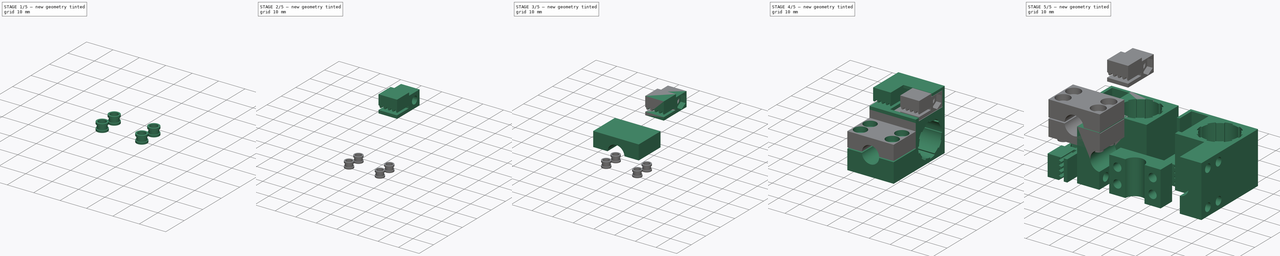
[diagram: build sequence overview — one tinted view per stage of 5, left to right]
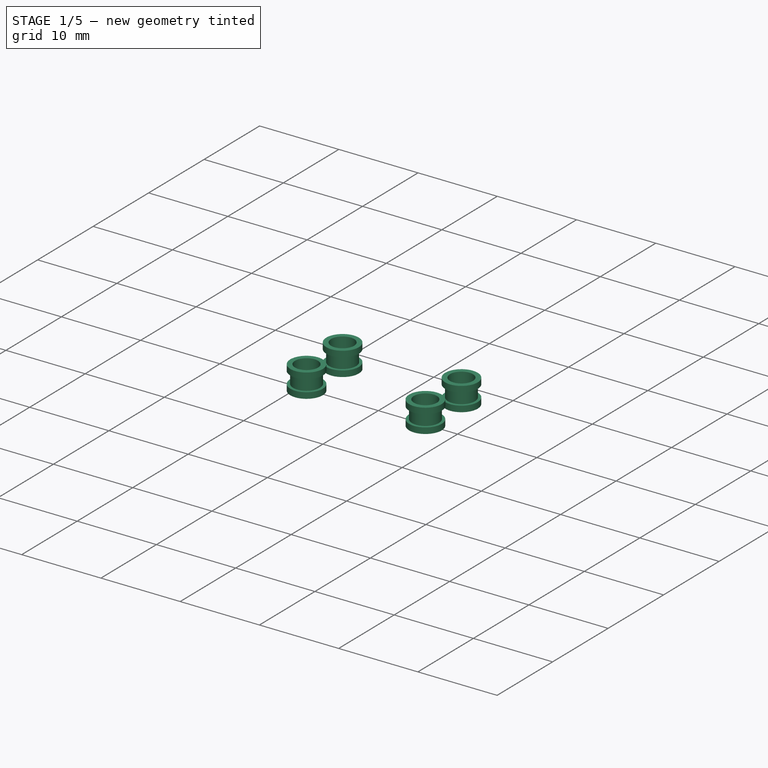
[diagram: stage 1 of 5 — iso view after this stage's code; geometry added in this stage tinted green]
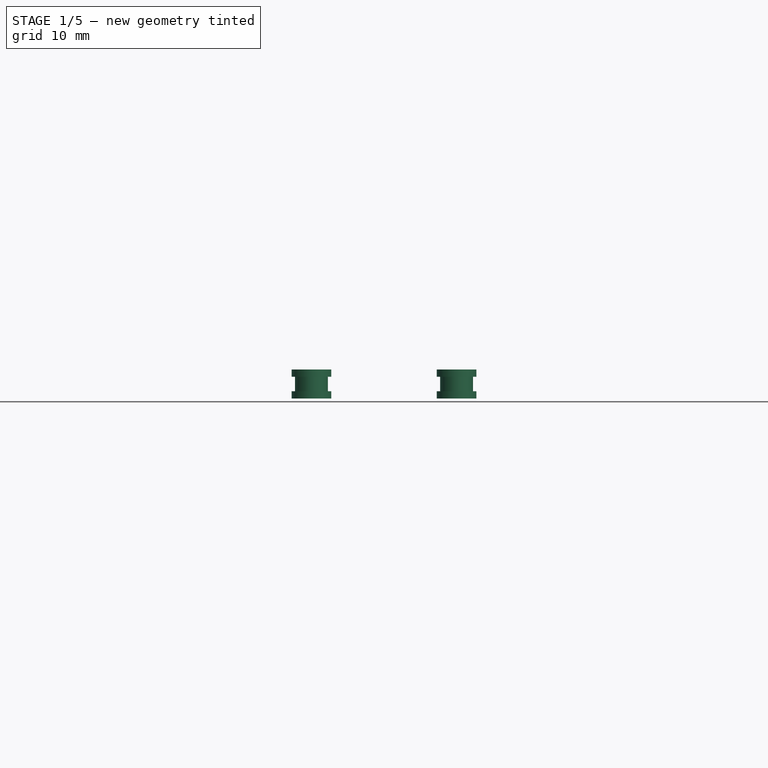
[diagram: stage 1 of 5 — front view after this stage's code; geometry added in this stage tinted green]
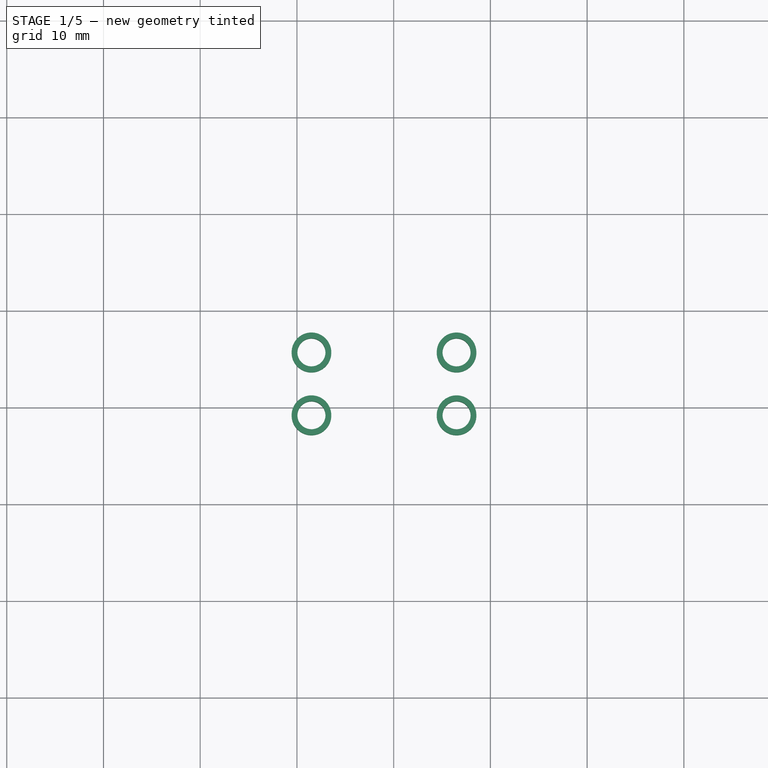
[diagram: stage 1 of 5 — top view after this stage's code; geometry added in this stage tinted green]
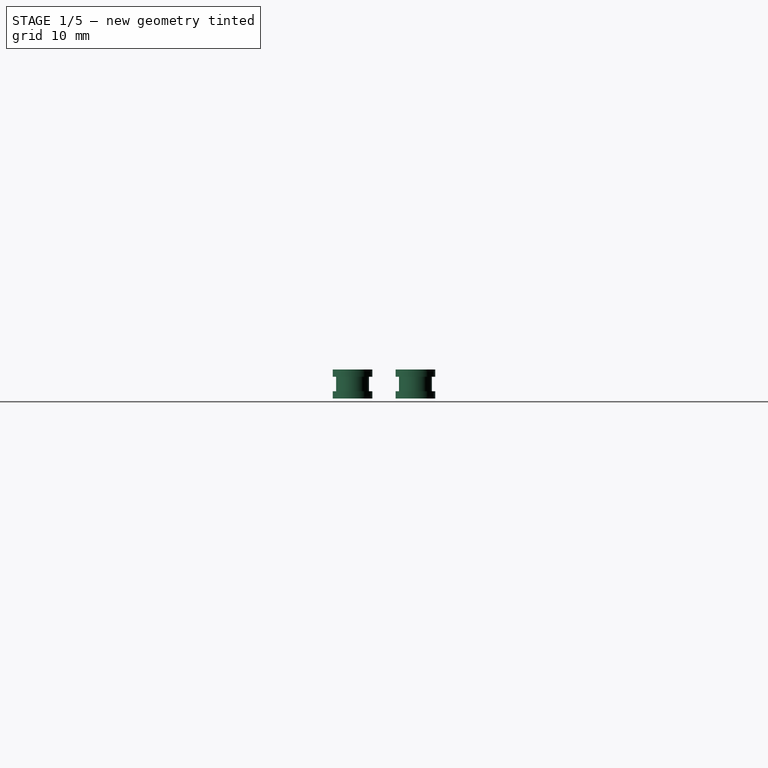
[diagram: stage 1 of 5 — right view after this stage's code; geometry added in this stage tinted green]
FCSTD DOCUMENT  (FreeCAD 0.17R)
Label: Axisholder
License: All rights reserved
LicenseURL: http://en.wikipedia.org/wiki/All_rights_reserved
objects: Sketcher::SketchObject×20, PartDesign::FeatureBase×19, PartDesign::Pocket×10, PartDesign::Pad×9, App::DocumentObjectGroup×7, PartDesign::Body×6, PartDesign::ShapeBinder×4, Part::MultiFuse×2, App::Part×2, PartDesign::PolarPattern×1, PartDesign::Revolution×1
note: 92 computed .brp shape members not serialized (recipe doc carries the construction recipe); baked Part::Feature solids carry a one-line shape summary decoded from their .brp

FEATURE [App::DocumentObjectGroup] Group004  label="Printables"
  Group = -> [Clone010,Clone011,Clone009,Clone008]
FEATURE [Sketcher::SketchObject] Sketch020
  MapMode = 5
  Placement = pos=(0,0,0) rot=(1,0,0;1.5708rad)
  Support = -> [XZ_Plane006]
  sketch-geometry (8):
    g0: LineSegment StartX=1.45 StartY=0 StartZ=0 EndX=2.05 EndY=0 EndZ=0
    g1: LineSegment StartX=2.05 StartY=0 StartZ=0 EndX=2.05 EndY=0.75 EndZ=0
    g2: LineSegment StartX=2.05 StartY=0.75 StartZ=0 EndX=1.7 EndY=0.75 EndZ=0
    g3: LineSegment StartX=1.7 StartY=0.75 StartZ=0 EndX=1.7 EndY=2.25 EndZ=0
    g4: LineSegment StartX=1.7 StartY=2.25 StartZ=0 EndX=2.05 EndY=2.25 EndZ=0
    g5: LineSegment StartX=2.05 StartY=2.25 StartZ=0 EndX=2.05 EndY=3 EndZ=0
    g6: LineSegment StartX=2.05 StartY=3 StartZ=0 EndX=1.45 EndY=3 EndZ=0
    g7: LineSegment StartX=1.45 StartY=3 StartZ=0 EndX=1.45 EndY=0 EndZ=0
  constraints (24):
    c: PointOnObject(g0,g-1)
    c: Horizontal(g0)
    c: Coincident(g0,g1)
    c: Vertical(g1)
    c: Coincident(g1,g2)
    c: Horizontal(g2)
    c: Coincident(g2,g3)
    c: Vertical(g3)
    c: Coincident(g3,g4)
    c: Horizontal(g4)
    c: Coincident(g4,g5)
    c: Vertical(g5)
    c: Coincident(g5,g6)
    c: Horizontal(g6)
    c: Coincident(g6,g7)
    c: Vertical(g7)
    c: Coincident(g0,g7)
    c: DistanceX(g-1,g0) = 1.45
    c: DistanceX(g-1,g0) = 2.05
    c: DistanceX(g-1,g2) = 1.7
    c: Equal(g2,g4)
    c: Equal(g5,g1)
    c: DistanceY(g0,g5) = 3
    c: DistanceY(g3,g3) = 1.5
FEATURE [PartDesign::Revolution] Revolution
  Angle = 360
  Axis = (0,0,1)
  Base = (0,0,0)
  Placement = pos=(0,0,0) rot=(1,0,0;1.5708rad)
  Profile = -> Sketch020
  ReferenceAxis = -> Sketch020 [V_Axis]
  Reversed = true
FEATURE [PartDesign::Body] Body005  label="Press-In-Bushing_M3x3mm"
  Group = -> [Sketch020,Revolution]
  Origin = -> Origin006
  Placement = pos=(-18.5,-20.8,6) rot=(0,0,1;0rad)
  Tip = -> Revolution
FEATURE [PartDesign::FeatureBase] Clone012  label="Press-In-Bushing_M3x3mm001"
  BaseFeature = -> Body005
  Placement = pos=(-18.5,-14.3,6) rot=(0,0,1;0rad)
FEATURE [PartDesign::FeatureBase] Clone013  label="Press-In-Bushing_M3x3mm002"
  BaseFeature = -> Clone012
  Placement = pos=(-3.5,-20.8,6) rot=(0,0,1;0rad)
FEATURE [PartDesign::FeatureBase] Clone014  label="Press-In-Bushing_M3x3mm003"
  BaseFeature = -> Clone012
  Placement = pos=(-3.5,-14.3,6) rot=(0,0,1;0rad)
FEATURE [PartDesign::FeatureBase] Clone015  label="Press-In-Bushing_M3x3mm004"
  BaseFeature = -> Body005
  Placement = pos=(-18.5,-20.8,-9) rot=(0,0,1;0rad)
FEATURE [PartDesign::FeatureBase] Clone016  label="Press-In-Bushing_M3x3mm005"
  BaseFeature = -> Clone012
  Placement = pos=(-18.5,-14.3,-9) rot=(0,0,1;0rad)
FEATURE [PartDesign::FeatureBase] Clone017  label="Press-In-Bushing_M3x3mm006"
  BaseFeature = -> Clone013
  Placement = pos=(-3.5,-20.8,-9) rot=(0,0,1;0rad)
FEATURE [PartDesign::FeatureBase] Clone018  label="Press-In-Bushing_M3x3mm007"
  BaseFeature = -> Clone014
  Placement = pos=(-3.5,-14.3,-9) rot=(0,0,1;0rad)
FEATURE [App::DocumentObjectGroup] Group005  label="Press-In-Bushings"
  Group = -> [Body005,Clone012,Clone013,Clone014]
FEATURE [App::DocumentObjectGroup] Group001  label="Assy_X-Axisholder"
  Group = -> [Fusion,Clone004,Clone006,Group005]
FEATURE [App::Part] Part  label="Assembly_X-Axisholder"
  Group = -> [Fusion,Clone002,Clone004,Clone006,Clone,Group001,Group005,Body005,Clone012,Clone013,Clone014]
  License = CC BY 3.0
  LicenseURL = http://creativecommons.org/licenses/by/3.0/
  Origin = -> Origin004
  Placement = pos=(0,0,0) rot=(0,1,0;3.14159rad)
FEATURE [App::DocumentObjectGroup] Group006  label="Press-In-Bushing"
  Group = -> [Clone015,Clone016,Clone017,Clone018]
FEATURE [App::DocumentObjectGroup] Group002  label="Assy_Y-Axisholder"
  Group = -> [Fusion001,Clone005,Clone007,Group006]
FEATURE [App::Part] Part001  label="Assembly_Y-Axisholder"
  Group = -> [Clone007,Clone003,Fusion001,Clone005,Clone001,Group002,Group006,Clone015,Clone016,Clone017,Clone018]
  License = CC BY 3.0
  LicenseURL = http://creativecommons.org/licenses/by/3.0/
  Origin = -> Origin005
  Placement = pos=(-10,0,0) rot=(0,0,1;0rad)
FEATURE [App::DocumentObjectGroup] Group003  label="Assemblies"
  Group = -> [Part,Part001]
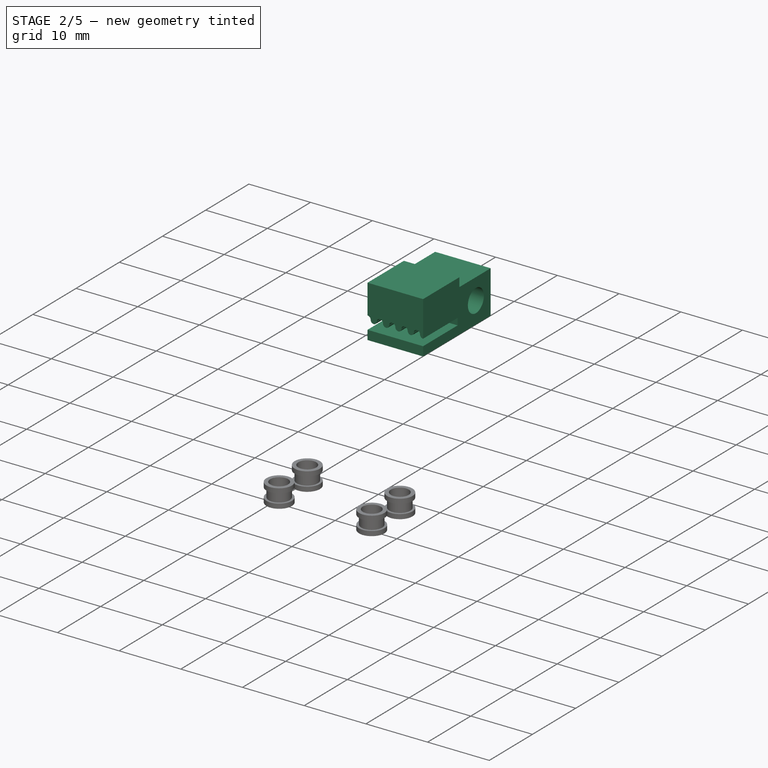
[diagram: stage 2 of 5 — iso view after this stage's code; geometry added in this stage tinted green]
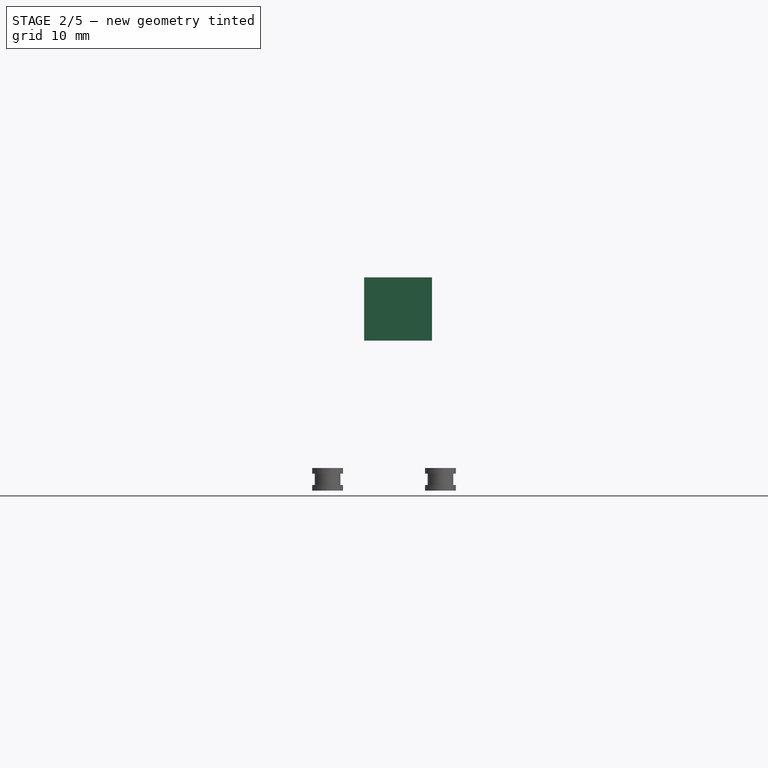
[diagram: stage 2 of 5 — front view after this stage's code; geometry added in this stage tinted green]
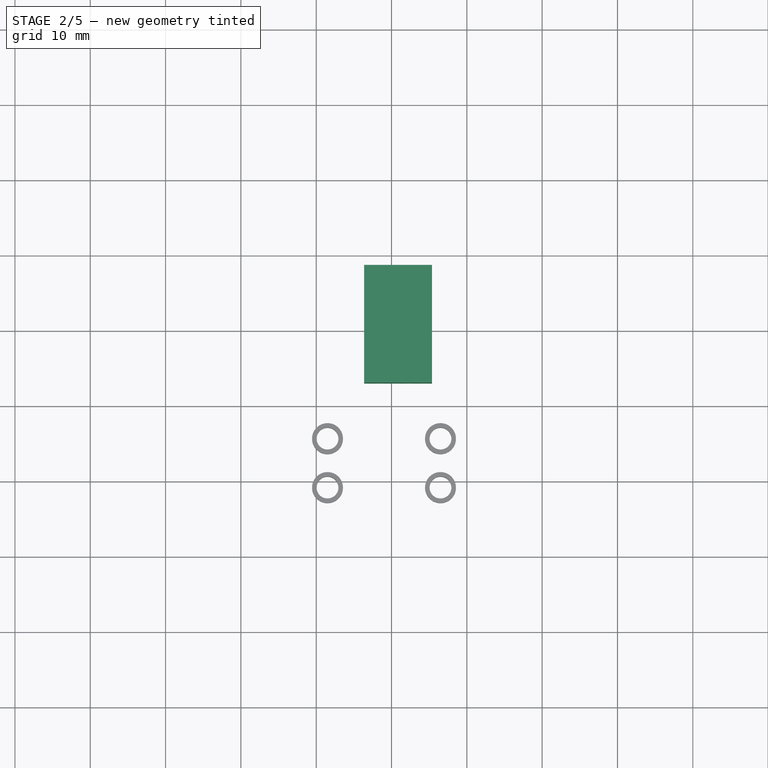
[diagram: stage 2 of 5 — top view after this stage's code; geometry added in this stage tinted green]
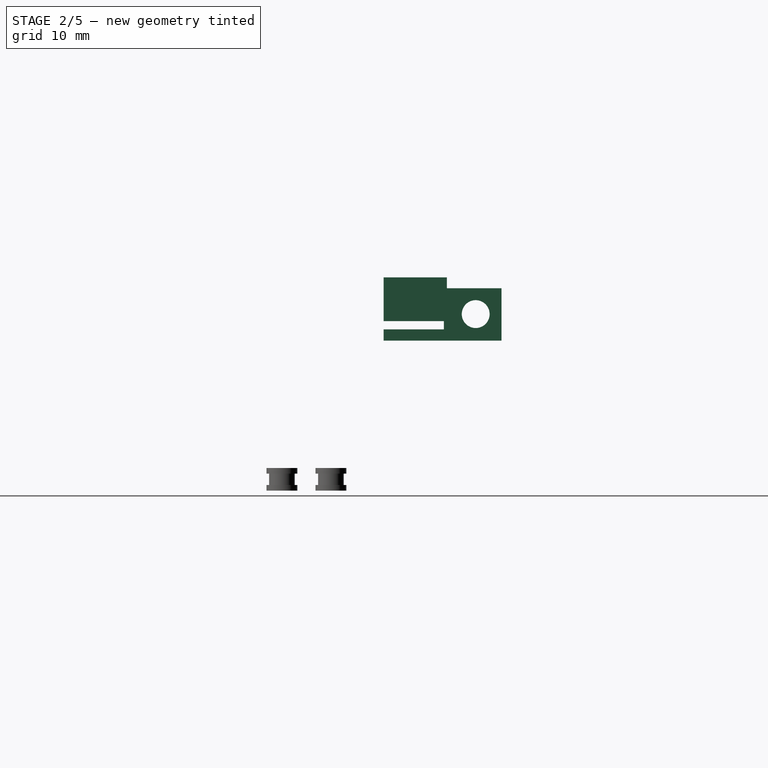
[diagram: stage 2 of 5 — right view after this stage's code; geometry added in this stage tinted green]
FEATURE [Sketcher::SketchObject] Sketch002  label="Beltblock"
  MapMode = 5
  Placement = pos=(0,0,10.8128) rot=(0,0,-1;1.5708rad)
  sketch-geometry (4):
    g0: LineSegment StartX=7.3 StartY=-13.6306 StartZ=0 EndX=-9.8 EndY=-13.6306 EndZ=0
    g1: LineSegment StartX=-9.8 StartY=-13.6306 StartZ=0 EndX=-9.8 EndY=-22 EndZ=0
    g2: LineSegment StartX=-9.8 StartY=-22 StartZ=0 EndX=7.3 EndY=-22 EndZ=0
    g3: LineSegment StartX=7.3 StartY=-13.6306 StartZ=0 EndX=7.3 EndY=-22 EndZ=0
  constraints (8):
    c: Coincident(g0,g1)
    c: Coincident(g1,g2)
    c: Horizontal(g0)
    c: Horizontal(g2)
    c: Vertical(g1)
    c: Coincident(g3,g0)
    c: Coincident(g3,g2)
    c: Vertical(g3)
FEATURE [Sketcher::SketchObject] Sketch  label="Grundkörper_Sketch"
  MapMode = 5
  Placement = pos=(0,0,0) rot=(0.57735,0.57735,0.57735;2.0944rad)
  Support = -> [YZ_Plane]
  sketch-geometry (7):
    g0: Circle CenterX=0 CenterY=0 CenterZ=0 NormalX=0 NormalY=0 NormalZ=1 AngleXU=0 Radius=7.6
    g1: LineSegment StartX=-9.8 StartY=10.8128 StartZ=0 EndX=9.8 EndY=10.8128 EndZ=0
    g2: LineSegment StartX=9.8 StartY=10.8128 StartZ=0 EndX=9.8 EndY=-9.5 EndZ=0
    g3: LineSegment StartX=9.8 StartY=-9.5 StartZ=0 EndX=-9.8 EndY=-9.5 EndZ=0
    g4: LineSegment StartX=-9.8 StartY=10.8128 StartZ=0 EndX=-9.8 EndY=-9.5 EndZ=0
    g5: LineSegment [constr] StartX=0 StartY=0 StartZ=0 EndX=0 EndY=-9.5 EndZ=0
    g6: LineSegment [constr] StartX=0 StartY=0 StartZ=0 EndX=9.8 EndY=0 EndZ=0
  constraints (19):
    c: Coincident(g0,g-1)
    c: Coincident(g1,g2)
    c: Coincident(g2,g3)
    c: Horizontal(g1)
    c: Horizontal(g3)
    c: Vertical(g2)
    c: Radius(g0) = 7.6
    c: Coincident(g1,g4)
    c: Vertical(g4)
    c: Coincident(g4,g3)
    c: Symmetric(g1,g1,g-2)
    c: Coincident(g5,g-1)
    c: PointOnObject(g5,g3)
    c: Vertical(g5)
    c: Distance(g5) = 9.5
    c: Coincident(g6,g-1)
    c: PointOnObject(g6,g2)
    c: DistanceX(g6,g6) = 9.8
    c: Horizontal(g6)
FEATURE [PartDesign::Pad] Pad  label="Grundkörper_Pad"
  Length = 22
  Length2 = 100
  Placement = pos=(0,0,0) rot=(0.57735,0.57735,0.57735;2.0944rad)
  Profile = -> Sketch
  Reversed = true
  Type = 0
FEATURE [PartDesign::Pad] Pad001  label="Pad_Beltblock"
  BaseFeature = -> Pad
  Length = 8.5
  Length2 = 100
  Placement = pos=(0,0,0) rot=(0.57735,0.57735,0.57735;2.0944rad)
  Profile = -> Sketch002
  Type = 0
FEATURE [Sketcher::SketchObject] Sketch003  label="Belt_Cutout"
  ExternalGeometry = -> [Pad001]
  MapMode = 5
  Placement = pos=(0,-7.3,0) rot=(0.57735,0.57735,-0.57735;2.0944rad)
  sketch-geometry (13):
    g0: LineSegment [constr] StartX=-13.9128 StartY=-22 StartZ=0 EndX=-13.9128 EndY=-13 EndZ=0
    g1: LineSegment StartX=-12.3128 StartY=-22 StartZ=0 EndX=-12.3128 EndY=-13.6306 EndZ=0
    g2: ArcOfCircle CenterX=-13.9128 CenterY=-21.5417 CenterZ=0 NormalX=0 NormalY=0 NormalZ=1 AngleXU=0 Radius=0.5 StartAngle=5.12391 EndAngle=7.85398
    g3: ArcOfCircle CenterX=-13.9128 CenterY=-20.5417 CenterZ=0 NormalX=0 NormalY=0 NormalZ=1 AngleXU=0 Radius=0.5 StartAngle=1.5708 EndAngle=4.71239
    g4: ArcOfCircle CenterX=-13.9128 CenterY=-19.5417 CenterZ=0 NormalX=0 NormalY=0 NormalZ=1 AngleXU=0 Radius=0.5 StartAngle=4.71239 EndAngle=7.85398
    g5: ArcOfCircle CenterX=-13.9128 CenterY=-18.5417 CenterZ=0 NormalX=0 NormalY=0 NormalZ=1 AngleXU=0 Radius=0.5 StartAngle=1.5708 EndAngle=4.71239
    g6: ArcOfCircle CenterX=-13.9128 CenterY=-17.5417 CenterZ=0 NormalX=0 NormalY=0 NormalZ=1 AngleXU=0 Radius=0.5 StartAngle=4.71239 EndAngle=7.85398
    g7: ArcOfCircle CenterX=-13.9128 CenterY=-16.5417 CenterZ=0 NormalX=0 NormalY=0 NormalZ=1 AngleXU=0 Radius=0.5 StartAngle=1.5708 EndAngle=4.71239
    g8: ArcOfCircle CenterX=-13.9128 CenterY=-15.5417 CenterZ=0 NormalX=0 NormalY=0 NormalZ=1 AngleXU=0 Radius=0.5 StartAngle=4.71239 EndAngle=7.85398
    g9: ArcOfCircle CenterX=-13.9128 CenterY=-14.5417 CenterZ=0 NormalX=0 NormalY=0 NormalZ=1 AngleXU=0 Radius=0.5 StartAngle=1.5708 EndAngle=4.71239
    g10: ArcOfCircle CenterX=-13.9128 CenterY=-13.5417 CenterZ=0 NormalX=0 NormalY=0 NormalZ=1 AngleXU=0 Radius=0.5 StartAngle=4.71239 EndAngle=6.10449
    g11: LineSegment StartX=-13.7128 StartY=-22 StartZ=0 EndX=-12.3128 EndY=-22 EndZ=0
    g12: LineSegment StartX=-12.3128 StartY=-13.6306 StartZ=0 EndX=-13.4208 EndY=-13.6306 EndZ=0
  constraints (51):
    c: Vertical(g0)
    c: Vertical(g1)
    c: DistanceX(g1,g-3) = 1.5
    c: Coincident(g3,g2)
    c: PointOnObject(g2,g0)
    c: PointOnObject(g2,g0)
    c: PointOnObject(g3,g0)
    c: PointOnObject(g3,g0)
    c: Radius(g2) = 0.5
    c: Equal(g2,g3)
    c: Coincident(g5,g4)
    c: Equal(g2,g4) = 0.5
    c: Equal(g4,g5)
    c: Coincident(g7,g6)
    c: Equal(g2,g6) = 0.5
    c: Equal(g6,g7)
    c: Coincident(g9,g8)
    c: Equal(g2,g8) = 0.5
    c: Equal(g8,g9)
    c: PointOnObject(g5,g0)
    c: Coincident(g4,g3)
    c: Coincident(g6,g5)
    c: Coincident(g8,g7)
    c: Coincident(g10,g9)
    c: Equal(g9,g10)
    c: PointOnObject(g4,g0)
    c: PointOnObject(g4,g0)
    c: PointOnObject(g5,g0)
    c: PointOnObject(g6,g0)
    c: PointOnObject(g6,g0)
    c: PointOnObject(g7,g0)
    c: PointOnObject(g7,g0)
    c: PointOnObject(g8,g0)
    c: PointOnObject(g8,g0)
    c: PointOnObject(g9,g0)
    c: PointOnObject(g9,g0)
    c: PointOnObject(g10,g0)
    c: DistanceX(g2,g1) = 1.6
    c: PointOnObject(g11,g-3)
    c: Coincident(g11,g1)
    c: Horizontal(g11)
    c: PointOnObject(g2,g11)
    c: Coincident(g11,g2)
    c: Coincident(g12,g1)
    c: Horizontal(g12)
    c: PointOnObject(g10,g12)
    c: Coincident(g12,g10)
    c: DistanceY(g0,g0) = 9
    c: PointOnObject(g0,g-3)
    c: PointOnObject(g10,g-4)
    c: DistanceX(g0,g2) = 0.2
FEATURE [PartDesign::Pocket] Pocket  label="Belt_Cutout_Pocket"
  BaseFeature = -> Pad001
  Length = 8
  Length2 = 100
  Placement = pos=(0,0,0) rot=(0.57735,0.57735,0.57735;2.0944rad)
  Profile = -> Sketch003
  Type = 0
FEATURE [Sketcher::SketchObject] Sketch004
  ExternalGeometry = -> [Pocket]
  MapMode = 5
  Placement = pos=(-13.6306,0,0) rot=(0.57735,0.57735,0.57735;2.0944rad)
  Support = -> [Pocket]
  sketch-geometry (6):
    g0: LineSegment StartX=9.8 StartY=19.3128 StartZ=0 EndX=1.3 EndY=19.3128 EndZ=0
    g1: LineSegment StartX=8.55 StartY=10.8128 StartZ=0 EndX=9.8 EndY=10.8128 EndZ=0
    g2: LineSegment StartX=9.8 StartY=10.8128 StartZ=0 EndX=9.8 EndY=19.3128 EndZ=0
    g3: LineSegment StartX=1.3 StartY=19.3128 StartZ=0 EndX=1.3 EndY=18.0628 EndZ=0
    g4: LineSegment StartX=1.3 StartY=18.0628 StartZ=0 EndX=8.55 EndY=18.0628 EndZ=0
    g5: LineSegment StartX=8.55 StartY=18.0628 StartZ=0 EndX=8.55 EndY=10.8128 EndZ=0
  constraints (17):
    c: Coincident(g1,g2)
    c: Coincident(g2,g0)
    c: Horizontal(g0)
    c: Horizontal(g1)
    c: Vertical(g2)
    c: Coincident(g0,g-3)
    c: Coincident(g1,g-3)
    c: Coincident(g0,g3)
    c: Vertical(g3)
    c: Coincident(g3,g4)
    c: Horizontal(g4)
    c: Vertical(g5)
    c: Coincident(g1,g5)
    c: Coincident(g5,g4)
    c: DistanceX(g1,g1) = 1.25
    c: DistanceY(g3,g3) = 1.25
    c: Equal(g5,g4)
FEATURE [PartDesign::Pad] Pad002  label="Führung_Beltspanner"
  BaseFeature = -> Pocket
  Length = 10
  Length2 = 100
  Placement = pos=(0,0,0) rot=(0.57735,0.57735,0.57735;2.0944rad)
  Profile = -> Sketch004
  Type = 3
  UpToFace = -> Pocket [Face1]
FEATURE [Sketcher::SketchObject] Sketch005  label="Schraube_Beltspanner"
  ExternalGeometry = -> [Pad002]
  MapMode = 5
  Placement = pos=(-13.6306,0,0) rot=(0.57735,0.57735,0.57735;2.0944rad)
  Support = -> [Pad002]
  sketch-geometry (3):
    g0: Circle CenterX=4.925 CenterY=14.4378 CenterZ=0 NormalX=0 NormalY=0 NormalZ=1 AngleXU=0 Radius=1.65
    g1: LineSegment [constr] StartX=4.925 StartY=14.4378 StartZ=0 EndX=4.925 EndY=18.0628 EndZ=0
    g2: LineSegment [constr] StartX=4.925 StartY=14.4378 StartZ=0 EndX=8.55 EndY=14.4378 EndZ=0
  constraints (9):
    c: Coincident(g1,g0)
    c: PointOnObject(g1,g-4)
    c: Vertical(g1)
    c: Coincident(g2,g0)
    c: PointOnObject(g2,g-3)
    c: Horizontal(g2)
    c: Symmetric(g-3,g-4,g2)
    c: Symmetric(g-4,g-4,g1)
    c: Radius(g0) = 1.65
FEATURE [PartDesign::Pocket] Pocket001  label="Schraubenloch_Beltspanner"
  BaseFeature = -> Pad002
  Length = 5
  Length2 = 100
  Placement = pos=(0,0,0) rot=(0.57735,0.57735,0.57735;2.0944rad)
  Profile = -> Sketch005
  Type = 1
FEATURE [Sketcher::SketchObject] Sketch006  label="IGUS_Aussparrung"
  MapMode = 5
  Placement = pos=(-22,0,0) rot=(0.57735,0.57735,-0.57735;4.18879rad)
  Support = -> [Pocket001]
  sketch-geometry (6):
    g0: ArcOfCircle CenterX=0 CenterY=0 CenterZ=0 NormalX=0 NormalY=0 NormalZ=1 AngleXU=0 Radius=8.25 StartAngle=2.74889 EndAngle=3.14159
    g1: ArcOfCircle CenterX=0 CenterY=0 CenterZ=0 NormalX=0 NormalY=0 NormalZ=1 AngleXU=0 Radius=7 StartAngle=2.74889 EndAngle=3.14159
    g2: LineSegment [constr] StartX=0 StartY=0 StartZ=0 EndX=-7.62201 EndY=3.15714 EndZ=0
    g3: LineSegment [constr] StartX=0 StartY=0 StartZ=0 EndX=-8.25 EndY=-2e-12 EndZ=0
    g4: LineSegment StartX=-7 StartY=-1e-12 StartZ=0 EndX=-8.25 EndY=-2e-12 EndZ=0
    g5: LineSegment StartX=-6.46716 StartY=2.67878 StartZ=0 EndX=-7.62201 EndY=3.15714 EndZ=0
  constraints (16):
    c: Coincident(g0,g-1)
    c: Coincident(g1,g-1)
    c: Coincident(g2,g-1)
    c: Coincident(g3,g-1)
    c: Angle(g2,g3) = 0.392699
    c: Coincident(g0,g2)
    c: Coincident(g0,g3)
    c: PointOnObject(g1,g2)
    c: PointOnObject(g1,g3)
    c: Radius(g0) = 8.25
    c: Radius(g1) = 7
    c: Coincident(g4,g1)
    c: Coincident(g4,g0)
    c: Coincident(g5,g1)
    c: Coincident(g5,g0)
    c: PointOnObject(g0,g-1)
FEATURE [PartDesign::Pocket] Pocket002  label="IGUS_Aussparrung_Single"
  BaseFeature = -> Pocket001
  Length = 5
  Length2 = 100
  Placement = pos=(0,0,0) rot=(0.57735,0.57735,0.57735;2.0944rad)
  Profile = -> Sketch006
  Type = 1
FEATURE [PartDesign::PolarPattern] PolarPattern  label="PolarPattern_IGUSAusparrung"
  Angle = 360
  Axis = -> X_Axis
  BaseFeature = -> Pocket002
  Occurrences = 8
  Originals = -> [Pocket002]
  Placement = pos=(0,0,0) rot=(0.57735,0.57735,0.57735;2.0944rad)
FEATURE [Sketcher::SketchObject] Sketch011  label="Verbindung_Führungsschiene"
  ExternalGeometry = -> [Pad004]
  MapMode = 5
  Placement = pos=(0,-7.3,0) rot=(0.57735,0.57735,-0.57735;2.0944rad)
  Support = -> [Pad004]
  sketch-geometry (4):
    g0: LineSegment StartX=-12.3128 StartY=-13.6306 StartZ=0 EndX=-10.8128 EndY=-13.6306 EndZ=0
    g1: LineSegment StartX=-10.8128 StartY=-13.6306 StartZ=0 EndX=-10.8128 EndY=-22 EndZ=0
    g2: LineSegment StartX=-10.8128 StartY=-22 StartZ=0 EndX=-12.3128 EndY=-22 EndZ=0
    g3: LineSegment StartX=-12.3128 StartY=-22 StartZ=0 EndX=-12.3128 EndY=-13.6306 EndZ=0
  constraints (10):
    c: Coincident(g0,g1)
    c: Coincident(g1,g2)
    c: Coincident(g2,g3)
    c: Coincident(g3,g0)
    c: Horizontal(g0)
    c: Horizontal(g2)
    c: Vertical(g1)
    c: Vertical(g3)
    c: Coincident(g0,g-3)
    c: Coincident(g1,g-4)
FEATURE [PartDesign::ShapeBinder] ReferencePolarPattern  label="BT_Reference_CommonBaseBody"
  Placement = pos=(0,0,0) rot=(0.57735,0.57735,0.57735;2.0944rad)
  Support = -> [PolarPattern]
FEATURE [Sketcher::SketchObject] Sketch007  label="BT_BasePad_Sketch"
  ExternalGeometry = -> [ReferencePolarPattern]
  MapMode = 5
  Placement = pos=(-13.6306,0,0) rot=(0.57735,0.57735,0.57735;2.0944rad)
  Support = -> [ReferencePolarPattern]
  sketch-geometry (7):
    g0: LineSegment StartX=-7.3 StartY=19.3128 StartZ=0 EndX=1.1 EndY=19.3128 EndZ=0
    g1: LineSegment StartX=1.1 StartY=19.3128 StartZ=0 EndX=1.1 EndY=17.8628 EndZ=0
    g2: LineSegment StartX=1.1 StartY=17.8628 StartZ=0 EndX=8.35 EndY=17.8628 EndZ=0
    g3: LineSegment StartX=8.35 StartY=17.8628 StartZ=0 EndX=8.35 EndY=10.9128 EndZ=0
    g4: LineSegment StartX=8.35 StartY=10.9128 StartZ=0 EndX=-7.3 EndY=10.9128 EndZ=0
    g5: Circle CenterX=4.925 CenterY=14.4378 CenterZ=0 NormalX=0 NormalY=0 NormalZ=1 AngleXU=0 Radius=1.85
    g6: LineSegment StartX=-7.3 StartY=19.3128 StartZ=0 EndX=-7.3 EndY=10.9128 EndZ=0
  constraints (20):
    c: Coincident(g0,g1)
    c: Vertical(g1)
    c: Coincident(g1,g2)
    c: Horizontal(g2)
    c: Coincident(g2,g3)
    c: Vertical(g3)
    c: Coincident(g3,g4)
    c: Horizontal(g4)
    c: Horizontal(g0)
    c: DistanceX(g2,g-7) = 0.2
    c: DistanceY(g2,g-7) = 0.2
    c: DistanceY(g-6,g3) = 0.1
    c: DistanceY(g0,g-9) = 0
    c: DistanceX(g0,g-9) = 0.2
    c: PointOnObject(g0,g-10)
    c: PointOnObject(g4,g-11)
    c: Coincident(g5,g-5)
    c: Radius(g5) = 1.85
    c: Coincident(g6,g0)
    c: Coincident(g6,g4)
FEATURE [PartDesign::Pad] Pad003  label="BT_BasePad"
  Length = 9
  Length2 = 5
  Placement = pos=(0,0,0) rot=(0.57735,0.57735,0.57735;2.0944rad)
  Profile = -> Sketch007
  Type = 0
FEATURE [Sketcher::SketchObject] Sketch008  label="BT_Cutout_Belt_Sketch"
  ExternalGeometry = -> [Pad003]
  MapMode = 5
  Placement = pos=(0,-7.3,0) rot=(0.57735,0.57735,-0.57735;2.0944rad)
  Support = -> [Pad003]
  sketch-geometry (14):
    g0: ArcOfCircle CenterX=-14.0128 CenterY=-12.6306 CenterZ=0 NormalX=0 NormalY=0 NormalZ=1 AngleXU=0 Radius=0.5 StartAngle=4.71239 EndAngle=7.85398
    g1: ArcOfCircle CenterX=-14.0128 CenterY=-11.6306 CenterZ=0 NormalX=0 NormalY=0 NormalZ=1 AngleXU=0 Radius=0.5 StartAngle=1.5708 EndAngle=4.71239
    g2: ArcOfCircle CenterX=-14.0128 CenterY=-10.6306 CenterZ=0 NormalX=0 NormalY=0 NormalZ=1 AngleXU=0 Radius=0.5 StartAngle=4.71239 EndAngle=7.85398
    g3: ArcOfCircle CenterX=-14.0128 CenterY=-9.63061 CenterZ=0 NormalX=0 NormalY=0 NormalZ=1 AngleXU=0 Radius=0.5 StartAngle=1.5708 EndAngle=4.71239
    g4: ArcOfCircle CenterX=-14.0128 CenterY=-8.63061 CenterZ=0 NormalX=0 NormalY=0 NormalZ=1 AngleXU=0 Radius=0.5 StartAngle=4.71239 EndAngle=7.85398
    g5: ArcOfCircle CenterX=-14.0128 CenterY=-7.63061 CenterZ=0 NormalX=0 NormalY=0 NormalZ=1 AngleXU=0 Radius=0.5 StartAngle=1.5708 EndAngle=4.71239
    g6: ArcOfCircle CenterX=-14.0128 CenterY=-6.63061 CenterZ=0 NormalX=0 NormalY=0 NormalZ=1 AngleXU=0 Radius=0.5 StartAngle=4.71239 EndAngle=7.85398
    g7: ArcOfCircle CenterX=-14.0128 CenterY=-5.63061 CenterZ=0 NormalX=0 NormalY=0 NormalZ=1 AngleXU=0 Radius=0.5 StartAngle=1.5708 EndAngle=4.71239
    g8: LineSegment [constr] StartX=-14.0128 StartY=-13.6306 StartZ=0 EndX=-14.0128 EndY=-4.63061 EndZ=0
    g9: ArcOfCircle CenterX=-14.0128 CenterY=-4.63061 CenterZ=0 NormalX=0 NormalY=0 NormalZ=1 AngleXU=0 Radius=0.5 StartAngle=4.71239 EndAngle=6.28319
    g10: LineSegment StartX=-14.5128 StartY=-13.6306 StartZ=0 EndX=-12.4128 EndY=-13.6306 EndZ=0
    g11: LineSegment StartX=-12.4128 StartY=-13.6306 StartZ=0 EndX=-12.4128 EndY=-4.63061 EndZ=0
    g12: ArcOfCircle CenterX=-14.0128 CenterY=-13.6306 CenterZ=0 NormalX=0 NormalY=0 NormalZ=1 AngleXU=0 Radius=0.5 StartAngle=1.5708 EndAngle=3.14159
    g13: LineSegment StartX=-12.4128 StartY=-4.63061 StartZ=0 EndX=-13.5128 EndY=-4.63061 EndZ=0
  constraints (48):
    c: Coincident(g1,g0)
    c: Coincident(g3,g2)
    c: Coincident(g5,g4)
    c: Coincident(g7,g6)
    c: Coincident(g1,g2)
    c: Coincident(g4,g3)
    c: Coincident(g6,g5)
    c: Radius(g0) = 0.5
    c: Equal(g0, g1-g7) x7
    c: Vertical(g8)
    c: PointOnObject(g7,g8)
    c: PointOnObject(g6,g8)
    c: PointOnObject(g5,g8)
    c: PointOnObject(g3,g8)
    c: PointOnObject(g3,g8)
    c: PointOnObject(g4,g8)
    c: PointOnObject(g6,g8)
    c: PointOnObject(g2,g8)
    c: PointOnObject(g2,g8)
    c: PointOnObject(g1,g8)
    c: PointOnObject(g1,g8)
    c: PointOnObject(g0,g8)
    c: PointOnObject(g4,g8)
    c: PointOnObject(g0,g8)
    c: PointOnObject(g5,g8)
    c: Coincident(g7,g9)
    c: PointOnObject(g7,g8)
    c: PointOnObject(g9,g8)
    c: Coincident(g10,g11)
    c: Vertical(g11)
    c: PointOnObject(g11,g-4)
    c: PointOnObject(g10,g-3)
    c: PointOnObject(g0,g8)
    c: Coincident(g12,g0)
    c: PointOnObject(g12,g8)
    c: Equal(g0,g12)
    c: DistanceX(g0,g10) = 1.6
    c: DistanceX(g10,g-3) = 1.5
    c: Coincident(g13,g11)
    c: PointOnObject(g13,g-4)
    c: PointOnObject(g9,g13)
    c: Coincident(g13,g9)
    c: PointOnObject(g9,g-4)
    c: Equal(g7,g9)
    c: Coincident(g12,g10)
    c: Coincident(g8,g12)
    c: Coincident(g8,g9)
    c: PointOnObject(g10,g-3)
FEATURE [PartDesign::Pocket] Pocket003  label="BT_Cutout_Belt"
  BaseFeature = -> Pad003
  Length = 8
  Length2 = 100
  Placement = pos=(0,0,0) rot=(0.57735,0.57735,0.57735;2.0944rad)
  Profile = -> Sketch008
  Type = 0
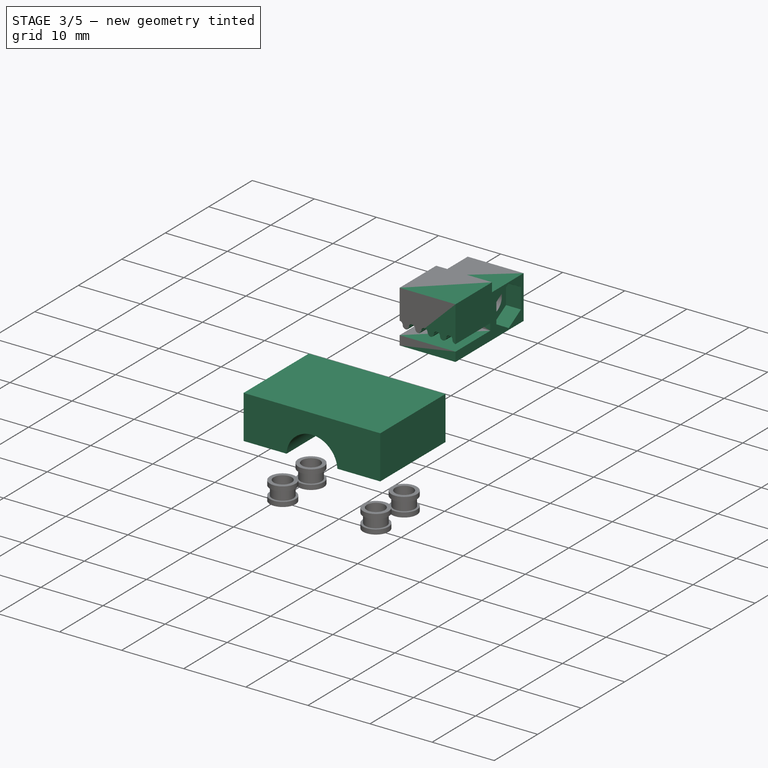
[diagram: stage 3 of 5 — iso view after this stage's code; geometry added in this stage tinted green]
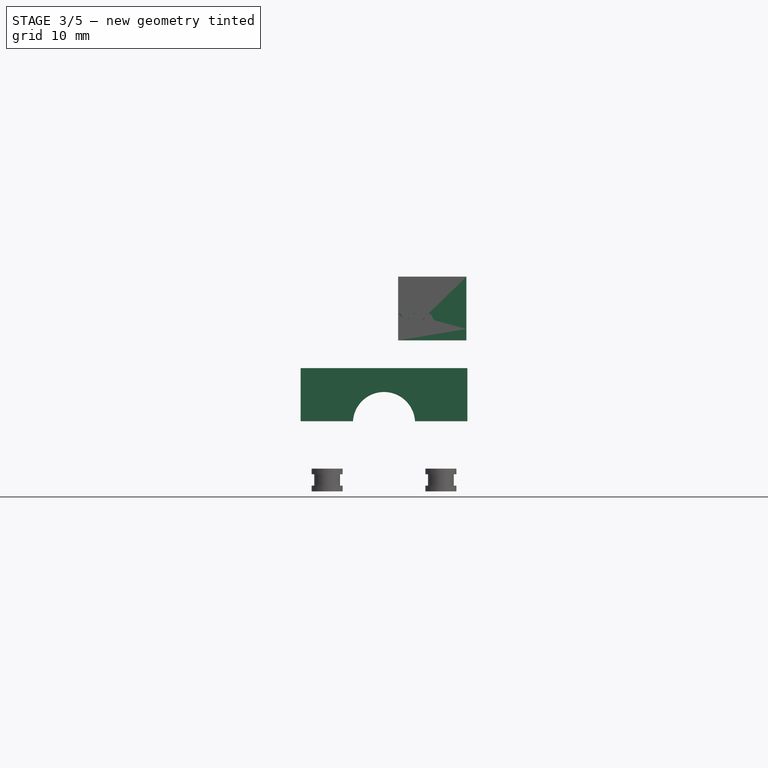
[diagram: stage 3 of 5 — front view after this stage's code; geometry added in this stage tinted green]
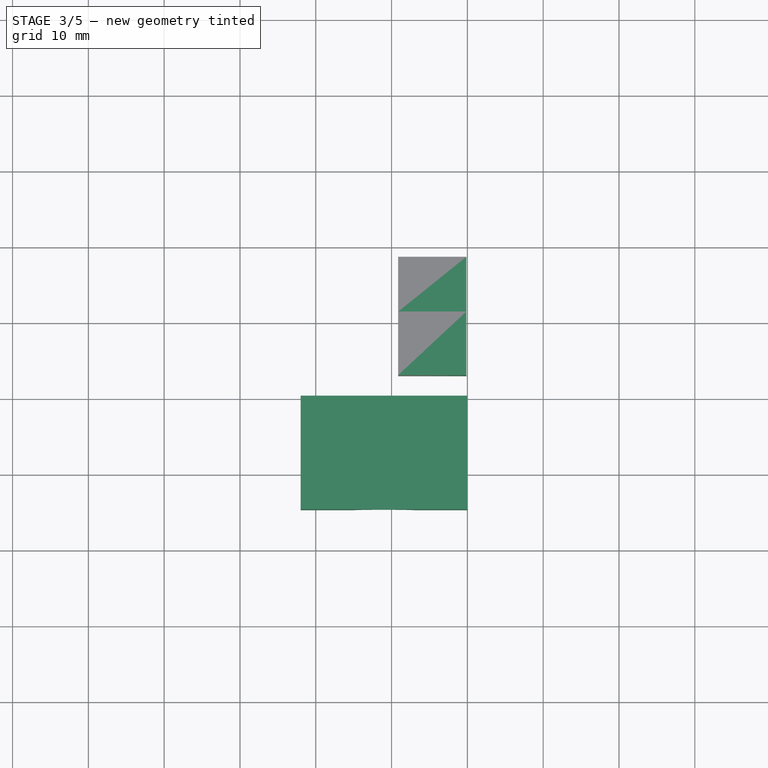
[diagram: stage 3 of 5 — top view after this stage's code; geometry added in this stage tinted green]
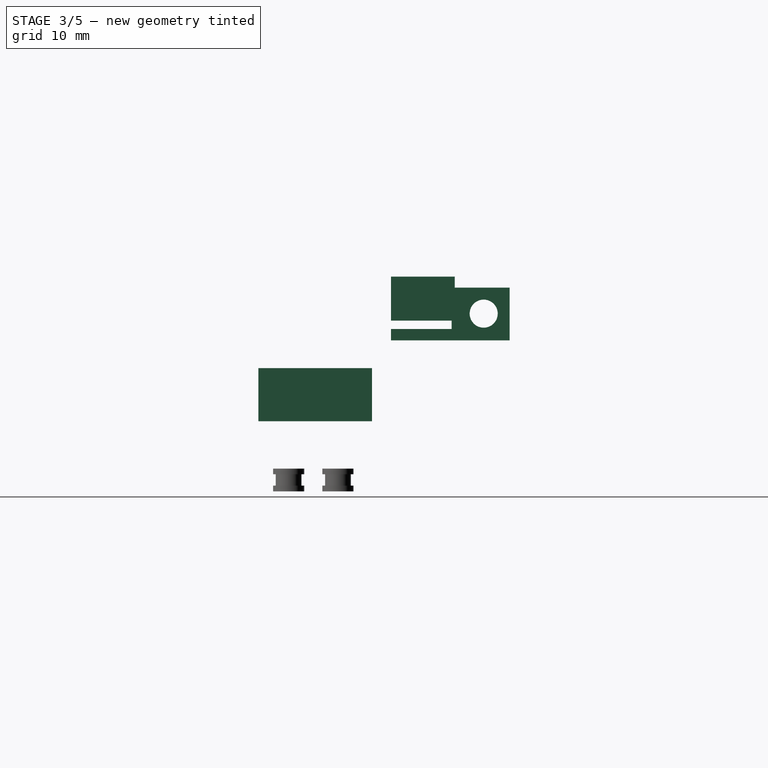
[diagram: stage 3 of 5 — right view after this stage's code; geometry added in this stage tinted green]
FEATURE [Sketcher::SketchObject] Sketch010  label="Führungsschiene_Beltspanner"
  ExternalGeometry = -> [PolarPattern]
  MapMode = 5
  Placement = pos=(0,0,10.8128) rot=(0,0,-1;1.5708rad)
  Support = -> [PolarPattern]
  sketch-geometry (4):
    g0: LineSegment StartX=9.8 StartY=-22 StartZ=0 EndX=7.7 EndY=-22 EndZ=0
    g1: LineSegment StartX=7.7 StartY=-22 StartZ=0 EndX=7.7 EndY=0 EndZ=0
    g2: LineSegment StartX=7.7 StartY=0 StartZ=0 EndX=9.8 EndY=0 EndZ=0
    g3: LineSegment StartX=9.8 StartY=0 StartZ=0 EndX=9.8 EndY=-22 EndZ=0
  constraints (11):
    c: Coincident(g0,g1)
    c: Coincident(g1,g2)
    c: Coincident(g2,g3)
    c: Coincident(g3,g0)
    c: Horizontal(g0)
    c: Horizontal(g2)
    c: Vertical(g1)
    c: Vertical(g3)
    c: Coincident(g0,g-3)
    c: Coincident(g2,g-3)
    c: DistanceX(g2,g2) = 2.1
FEATURE [PartDesign::Pad] Pad004  label="Führungsschiene_Oben_Beltspanner"
  BaseFeature = -> PolarPattern
  Length = 1.5
  Length2 = 100
  Placement = pos=(0,0,0) rot=(0.57735,0.57735,0.57735;2.0944rad)
  Profile = -> Sketch010
  Type = 0
FEATURE [Sketcher::SketchObject] Sketch009  label="BT_Hexnut_Sketch"
  ExternalGeometry = -> [Pocket003]
  MapMode = 5
  Placement = pos=(-4.63061,0,0) rot=(0.57735,0.57735,0.57735;2.0944rad)
  Support = -> [Pocket003]
  sketch-geometry (7):
    g0: LineSegment StartX=7.75 StartY=12.8068 StartZ=0 EndX=7.75 EndY=16.0689 EndZ=0
    g1: LineSegment StartX=7.75 StartY=16.0689 StartZ=0 EndX=4.925 EndY=17.6999 EndZ=0
    g2: LineSegment StartX=4.925 StartY=17.6999 StartZ=0 EndX=2.1 EndY=16.0689 EndZ=0
    g3: LineSegment StartX=2.1 StartY=16.0689 StartZ=0 EndX=2.1 EndY=12.8068 EndZ=0
    g4: LineSegment StartX=2.1 StartY=12.8068 StartZ=0 EndX=4.925 EndY=11.1758 EndZ=0
    g5: LineSegment StartX=4.925 StartY=11.1758 StartZ=0 EndX=7.75 EndY=12.8068 EndZ=0
    g6: Circle [constr] CenterX=4.925 CenterY=14.4378 CenterZ=0 NormalX=0 NormalY=0 NormalZ=1 AngleXU=0 Radius=3.26203
  constraints (15):
    c: Coincident(g0,g1)
    c: Coincident(g1,g2)
    c: Coincident(g2,g3)
    c: Coincident(g3,g4)
    c: Coincident(g4,g5)
    c: Coincident(g5,g0)
    c: Equal(g0, g1-g5) x5
    c: PointOnObject(g0,g6)
    c: PointOnObject(g1,g6)
    c: PointOnObject(g2,g6)
    c: PointOnObject(g3,g6)
    c: PointOnObject(g4,g6)
    c: PointOnObject(g5,g6)
    c: Vertical(g0)
    c: DistanceX(g2,g0) = 5.65
FEATURE [PartDesign::Pocket] Pocket004  label="BT_Hexnut_Pocket"
  BaseFeature = -> Pocket003
  Length = 2.4
  Length2 = 100
  Placement = pos=(0,0,0) rot=(0.57735,0.57735,0.57735;2.0944rad)
  Profile = -> Sketch009
  Type = 0
FEATURE [PartDesign::Body] Body001  label="Belt-Tightener"
  Group = -> [ReferencePolarPattern,Sketch007,Pad003,Sketch008,Pocket003,Sketch009,Pocket004]
  Origin = -> Origin001
  Placement = pos=(5,0,0) rot=(0,0,1;0rad)
  Tip = -> Pocket004
FEATURE [PartDesign::Pad] Pad005  label="Führungsschiene_Beltspanner_Teil2"
  BaseFeature = -> Pad004
  Length = 10
  Length2 = 100
  Placement = pos=(0,0,0) rot=(0.57735,0.57735,0.57735;2.0944rad)
  Profile = -> Sketch011
  Type = 2
FEATURE [Sketcher::SketchObject] Sketch012  label="SchraublöcherFür_Endschalterbetätigungen"
  ExternalGeometry = -> [Pad005]
  MapMode = 5
  Placement = pos=(0,9.8,0) rot=(0.57735,0.57735,0.57735;4.18879rad)
  Support = -> [Pad005]
  sketch-geometry (2):
    g0: Circle CenterX=8.06285 CenterY=-3.5 CenterZ=0 NormalX=0 NormalY=0 NormalZ=1 AngleXU=0 Radius=1.75
    g1: Circle CenterX=8.06285 CenterY=-18.5 CenterZ=0 NormalX=0 NormalY=0 NormalZ=1 AngleXU=0 Radius=1.75
  constraints (6):
    c: Radius(g0) = 1.75
    c: Equal(g0,g1)
    c: DistanceX(g0,g-4) = 2.75
    c: DistanceX(g1,g-5) = 2.75
    c: DistanceY(g-5,g1) = 3.5
    c: DistanceY(g0,g-4) = 3.5
FEATURE [PartDesign::Pocket] Pocket005  label="Schraublöcher_Endschalterbestätigungen"
  BaseFeature = -> Pad005
  Length = 4
  Length2 = 100
  Placement = pos=(0,0,0) rot=(0.57735,0.57735,0.57735;2.0944rad)
  Profile = -> Sketch012
  Type = 0
FEATURE [PartDesign::ShapeBinder] ReferencePocket005001  label="AHX_Reference_CommonBaseBody"
  Placement = pos=(0,0,0) rot=(0.57735,0.57735,0.57735;2.0944rad)
  Support = -> [Pocket005]
FEATURE [PartDesign::ShapeBinder] ReferencePocket005  label="AHY_Reference_CommonBaseBody"
  Placement = pos=(0,0,0) rot=(0.57735,0.57735,0.57735;2.0944rad)
  Support = -> [Pocket005]
FEATURE [PartDesign::Body] Body  label="Common_Basepart_Axisholder"
  Group = -> [Sketch,Pad,Sketch002,Sketch003,Pad001,Pocket,Sketch004,Pad002,Sketch005,Pocket001,Sketch006,Pocket002,PolarPattern,Sketch010,Pad004,Sketch011,Pad005,Sketch012,Pocket005]
  Origin = -> Origin
  Tip = -> Pocket005
FEATURE [Sketcher::SketchObject] Sketch015  label="AHX_Mainpad_Sketch"
  ExternalGeometry = -> [ReferencePocket005001]
  MapMode = 5
  Placement = pos=(0,-9.8,0) rot=(-0.57735,-0.57735,0.57735;4.18879rad)
  Support = -> [ReferencePocket005001]
  sketch-geometry (7):
    g0: LineSegment StartX=-0.25 StartY=0 StartZ=0 EndX=-9.75 EndY=0 EndZ=0
    g1: LineSegment StartX=-9.75 StartY=0 StartZ=0 EndX=-9.75 EndY=-22 EndZ=0
    g2: LineSegment StartX=-9.75 StartY=-22 StartZ=0 EndX=-0.25 EndY=-22 EndZ=0
    g3: ArcOfCircle CenterX=0 CenterY=-11 CenterZ=0 NormalX=0 NormalY=0 NormalZ=1 AngleXU=0 Radius=4.1 StartAngle=1.63181 EndAngle=4.65138
    g4: LineSegment [constr] StartX=9.5 StartY=-11 StartZ=0 EndX=-10.8128 EndY=-11 EndZ=0
    g5: LineSegment StartX=-0.25 StartY=-6.90763 StartZ=0 EndX=-0.25 EndY=0 EndZ=0
    g6: LineSegment StartX=-0.25 StartY=-15.0924 StartZ=0 EndX=-0.25 EndY=-22 EndZ=0
  constraints (23):
    c: Coincident(g0,g1)
    c: Coincident(g1,g2)
    c: Horizontal(g0)
    c: Horizontal(g2)
    c: Vertical(g1)
    c: PointOnObject(g3,g-2)
    c: PointOnObject(g4,g-5)
    c: PointOnObject(g4,g-6)
    c: Horizontal(g4)
    c: Symmetric(g-5,g-5,g4)
    c: PointOnObject(g3,g4)
    c: Radius(g3) = 4.1
    c: PointOnObject(g2,g-4)
    c: PointOnObject(g0,g-3)
    c: DistanceX(g0,g0) = 9.5
    c: DistanceX(g0,g-1) = 0.25
    c: Coincident(g5,g3)
    c: Coincident(g5,g0)
    c: Vertical(g5)
    c: Coincident(g6,g3)
    c: Coincident(g6,g2)
    c: Vertical(g6)
    c: Equal(g2,g0)
FEATURE [PartDesign::Pad] Pad007  label="AHX_Mainpad"
  Length = 15
  Length2 = 100
  Placement = pos=(0,0,0) rot=(0.57735,0.57735,0.57735;2.0944rad)
  Profile = -> Sketch015
  Type = 0
FEATURE [Sketcher::SketchObject] Sketch016  label="AHX_Screwholes_Sketch"
  ExternalGeometry = -> [Pad007]
  MapMode = 5
  Placement = pos=(0,0,0.25) rot=(0.707107,0.707107,0;3.14159rad)
  Support = -> [Pad007]
  sketch-geometry (8):
    g0: LineSegment [constr] StartX=-24.8 StartY=-3.45381 StartZ=0 EndX=-9.8 EndY=-3.45381 EndZ=0
    g1: LineSegment [constr] StartX=-24.8 StartY=-18.5462 StartZ=0 EndX=-9.8 EndY=-18.5462 EndZ=0
    g2: LineSegment [constr] StartX=-14.3 StartY=-3.45381 StartZ=0 EndX=-14.3 EndY=-18.5462 EndZ=0
    g3: LineSegment [constr] StartX=-20.8 StartY=-3.45381 StartZ=0 EndX=-20.8 EndY=-18.5462 EndZ=0
    g4: Circle CenterX=-14.3 CenterY=-3.45381 CenterZ=0 NormalX=0 NormalY=0 NormalZ=1 AngleXU=0 Radius=1.75
    g5: Circle CenterX=-20.8 CenterY=-3.45381 CenterZ=0 NormalX=0 NormalY=0 NormalZ=1 AngleXU=0 Radius=1.75
    g6: Circle CenterX=-20.8 CenterY=-18.5462 CenterZ=0 NormalX=0 NormalY=0 NormalZ=1 AngleXU=0 Radius=1.75
    g7: Circle CenterX=-14.3 CenterY=-18.5462 CenterZ=0 NormalX=0 NormalY=0 NormalZ=1 AngleXU=0 Radius=1.75
  constraints (24):
    c: PointOnObject(g0,g-3)
    c: PointOnObject(g0,g-5)
    c: Horizontal(g0)
    c: PointOnObject(g1,g-4)
    c: PointOnObject(g1,g-6)
    c: Horizontal(g1)
    c: PointOnObject(g2,g0)
    c: PointOnObject(g2,g1)
    c: Vertical(g2)
    c: PointOnObject(g3,g0)
    c: PointOnObject(g3,g1)
    c: Vertical(g3)
    c: Symmetric(g-3,g-3,g0)
    c: Symmetric(g-4,g-4,g1)
    c: Coincident(g4,g2)
    c: Coincident(g5,g3)
    c: Coincident(g6,g3)
    c: Coincident(g7,g2)
    c: Radius(g4) = 1.75
    c: Equal(g4,g5)
    c: Equal(g4,g7)
    c: Equal(g4,g6)
    c: DistanceX(g-3,g3) = 4
    c: DistanceX(g2,g-5) = 4.5
FEATURE [PartDesign::Pocket] Pocket007  label="AHX_Screwholes"
  BaseFeature = -> Pad007
  Length = 5
  Length2 = 100
  Placement = pos=(0,0,0) rot=(0.57735,0.57735,0.57735;2.0944rad)
  Profile = -> Sketch016
  Type = 1
FEATURE [PartDesign::ShapeBinder] ReferencePocket007
  Support = -> [Pocket007]
FEATURE [Sketcher::SketchObject] Sketch017
  ExternalGeometry = -> [ReferencePocket007]
  MapMode = 5
  Placement = pos=(0,-9.8,0) rot=(0,0.707107,0.707107;3.14159rad)
  Support = -> [ReferencePocket007]
  sketch-geometry (6):
    g0: ArcOfCircle CenterX=11 CenterY=0 CenterZ=0 NormalX=0 NormalY=0 NormalZ=1 AngleXU=0 Radius=4.1 StartAngle=0.0610135 EndAngle=3.08058
    g1: LineSegment StartX=15.0924 StartY=0.25 StartZ=0 EndX=22 EndY=0.25 EndZ=0
    g2: LineSegment StartX=6.90763 StartY=0.25 StartZ=0 EndX=0 EndY=0.25 EndZ=0
    g3: LineSegment StartX=0 StartY=0.25 StartZ=0 EndX=0 EndY=7.25 EndZ=0
    g4: LineSegment StartX=0 StartY=7.25 StartZ=0 EndX=22 EndY=7.25 EndZ=0
    g5: LineSegment StartX=22 StartY=7.25 StartZ=0 EndX=22 EndY=0.25 EndZ=0
  constraints (15):
    c: Coincident(g0,g-4)
    c: Coincident(g0,g-5)
    c: Coincident(g0,g-4)
    c: Coincident(g1,g0)
    c: Coincident(g1,g-5)
    c: Coincident(g2,g0)
    c: Coincident(g2,g-3)
    c: Coincident(g2,g3)
    c: PointOnObject(g3,g-2)
    c: Coincident(g3,g4)
    c: Horizontal(g4)
    c: Coincident(g4,g5)
    c: Coincident(g5,g1)
    c: Vertical(g5)
    c: DistanceY(g5,g5) = 7
FEATURE [PartDesign::Pad] Pad008  label="Clamp_BasePad"
  Length = 15
  Length2 = 100
  Profile = -> Sketch017
  Reversed = true
  Type = 0
FEATURE [PartDesign::FeatureBase] Clone007  label="BeltTighterner_Y"
  BaseFeature = -> Pocket004
  Placement = pos=(4.5,0,0) rot=(0.57735,0.57735,0.57735;2.0944rad)
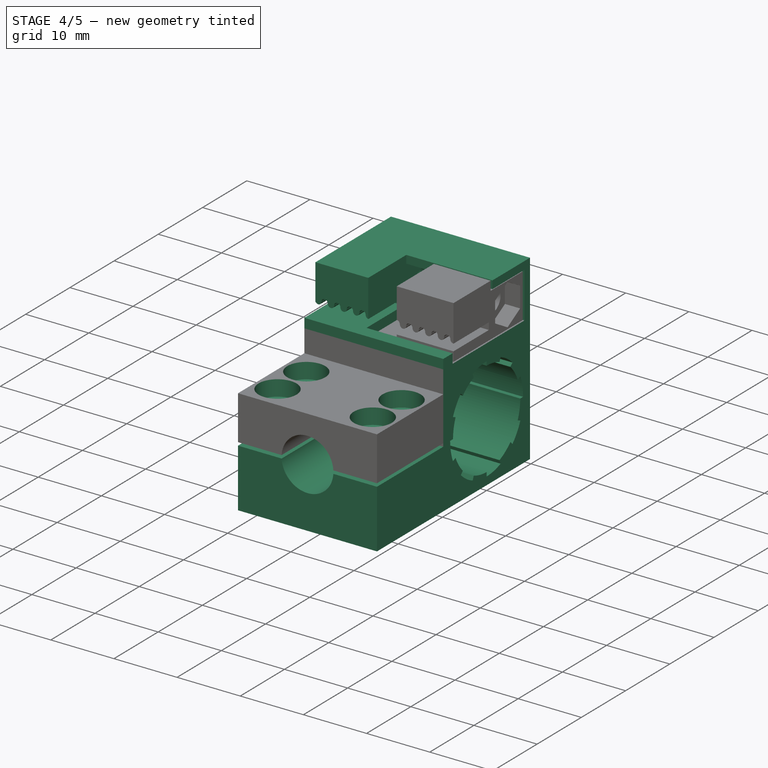
[diagram: stage 4 of 5 — iso view after this stage's code; geometry added in this stage tinted green]
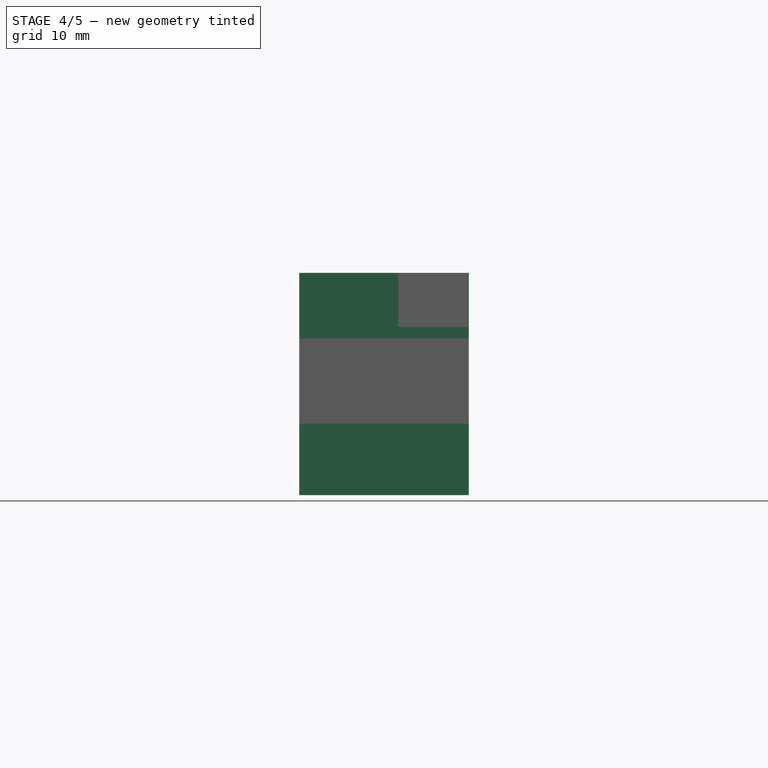
[diagram: stage 4 of 5 — front view after this stage's code; geometry added in this stage tinted green]
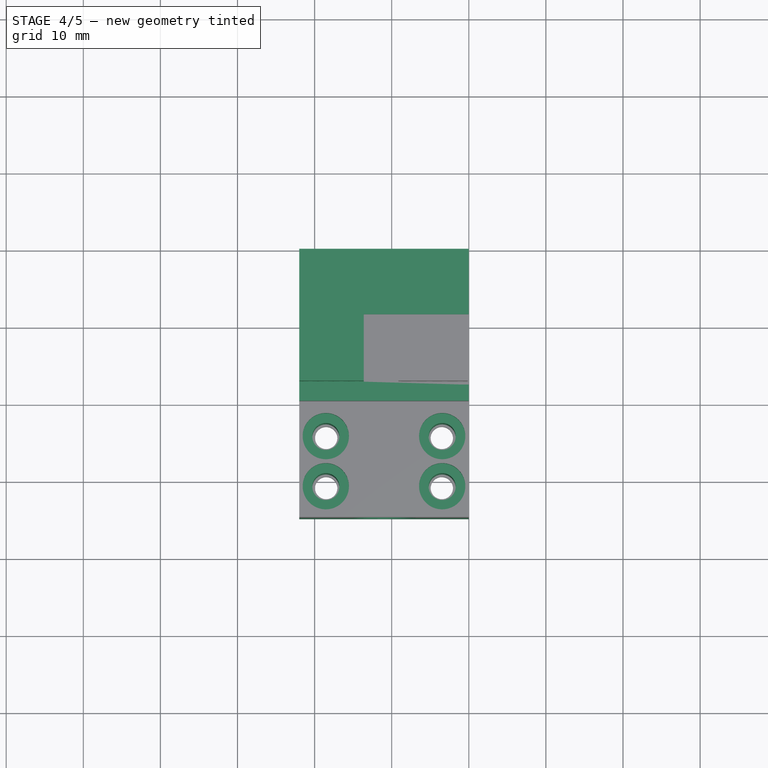
[diagram: stage 4 of 5 — top view after this stage's code; geometry added in this stage tinted green]
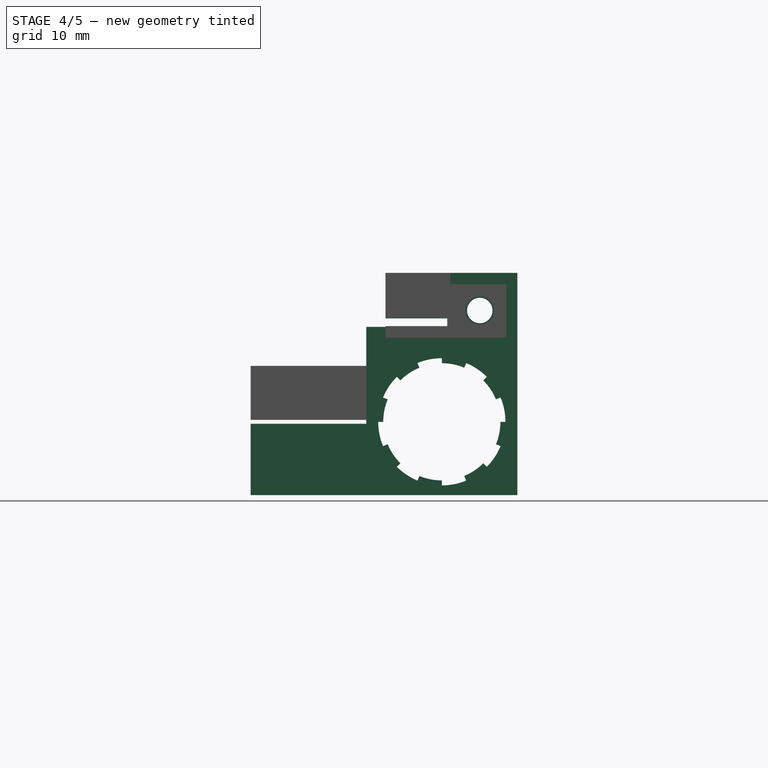
[diagram: stage 4 of 5 — right view after this stage's code; geometry added in this stage tinted green]
FEATURE [PartDesign::FeatureBase] Clone  label="Basepart_X"
  BaseFeature = -> Pocket005
  Placement = pos=(0,0,0) rot=(0.57735,0.57735,0.57735;2.0944rad)
FEATURE [PartDesign::FeatureBase] Clone001  label="Basepart_Y"
  BaseFeature = -> Clone
  Placement = pos=(0,0,0) rot=(0.57735,0.57735,0.57735;2.0944rad)
FEATURE [Sketcher::SketchObject] Sketch018
  ExternalGeometry = -> [Pad008]
  MapMode = 5
  Placement = pos=(0,0,0.25) rot=(1,0,0;3.14159rad)
  Support = -> [Pad008]
  sketch-geometry (8):
    g0: LineSegment [constr] StartX=-22 StartY=20.8 StartZ=0 EndX=0 EndY=20.8 EndZ=0
    g1: LineSegment [constr] StartX=0 StartY=14.3 StartZ=0 EndX=-22 EndY=14.3 EndZ=0
    g2: LineSegment [constr] StartX=-18.5462 StartY=24.8 StartZ=0 EndX=-18.5462 EndY=9.8 EndZ=0
    g3: LineSegment [constr] StartX=-3.45381 StartY=9.8 StartZ=0 EndX=-3.45381 EndY=24.8 EndZ=0
    g4: Circle CenterX=-18.5462 CenterY=14.3 CenterZ=0 NormalX=0 NormalY=0 NormalZ=1 AngleXU=0 Radius=1.75
    g5: Circle CenterX=-18.5462 CenterY=20.8 CenterZ=0 NormalX=0 NormalY=0 NormalZ=1 AngleXU=0 Radius=1.75
    g6: Circle CenterX=-3.45381 CenterY=20.8 CenterZ=0 NormalX=0 NormalY=0 NormalZ=1 AngleXU=0 Radius=1.75
    g7: Circle CenterX=-3.45381 CenterY=14.3 CenterZ=0 NormalX=0 NormalY=0 NormalZ=1 AngleXU=0 Radius=1.75
  constraints (28):
    c: PointOnObject(g0,g-3)
    c: PointOnObject(g0,g-8)
    c: Horizontal(g0)
    c: PointOnObject(g1,g-8)
    c: PointOnObject(g1,g-3)
    c: Horizontal(g1)
    c: PointOnObject(g2,g-4)
    c: PointOnObject(g2,g-5)
    c: Vertical(g2)
    c: PointOnObject(g3,g-6)
    c: PointOnObject(g3,g-7)
    c: Vertical(g3)
    c: Symmetric(g-7,g-8,g3)
    c: Symmetric(g-4,g-4,g2)
    c: PointOnObject(g7,g1)
    c: PointOnObject(g7,g3)
    c: PointOnObject(g6,g3)
    c: PointOnObject(g6,g0)
    c: PointOnObject(g5,g2)
    c: PointOnObject(g5,g0)
    c: PointOnObject(g4,g2)
    c: PointOnObject(g4,g1)
    c: Radius(g5) = 1.75
    c: Equal(g5,g6)
    c: Equal(g5,g7)
    c: Equal(g5,g4)
    c: DistanceY(g2,g4) = 4.5
    c: DistanceY(g5,g2) = 4
FEATURE [PartDesign::Pocket] Pocket008  label="Clamp_Screwholes"
  BaseFeature = -> Pad008
  Length = 5
  Length2 = 100
  Profile = -> Sketch018
  Type = 1
FEATURE [Sketcher::SketchObject] Sketch013  label="AHY_Mainpad_Sketch"
  ExternalGeometry = -> [ReferencePocket005]
  MapMode = 5
  Placement = pos=(-2e-12,-9.8,0) rot=(-0.57735,-0.57735,0.57735;4.18879rad)
  Support = -> [ReferencePocket005]
  sketch-geometry (7):
    g0: ArcOfCircle CenterX=0 CenterY=-11 CenterZ=0 NormalX=0 NormalY=0 NormalZ=1 AngleXU=0 Radius=4.1 StartAngle=4.7734 EndAngle=7.79297
    g1: LineSegment [constr] StartX=9.5 StartY=-11 StartZ=0 EndX=0 EndY=-11 EndZ=0
    g2: LineSegment StartX=9.5 StartY=-22 StartZ=0 EndX=0.25 EndY=-22 EndZ=0
    g3: LineSegment StartX=0.25 StartY=-22 StartZ=0 EndX=0.25 EndY=-15.0924 EndZ=0
    g4: LineSegment StartX=0.25 StartY=0 StartZ=0 EndX=9.5 EndY=0 EndZ=0
    g5: LineSegment StartX=9.5 StartY=0 StartZ=0 EndX=9.5 EndY=-22 EndZ=0
    g6: LineSegment StartX=0.25 StartY=-6.90763 StartZ=0 EndX=0.25 EndY=0 EndZ=0
  constraints (24):
    c: PointOnObject(g1,g-5)
    c: Coincident(g1,g0)
    c: Horizontal(g1)
    c: Symmetric(g-5,g-5,g1)
    c: PointOnObject(g0,g-2)
    c: Radius(g0) = 4.1
    c: Coincident(g2,g3)
    c: Coincident(g6,g4)
    c: Horizontal(g2)
    c: Horizontal(g4)
    c: Vertical(g3)
    c: PointOnObject(g6,g-4)
    c: DistanceX(g-1,g6) = 0.25
    c: PointOnObject(g2,g-3)
    c: Coincident(g5,g4)
    c: Coincident(g5,g2)
    c: Vertical(g5)
    c: Coincident(g2,g-5)
    c: PointOnObject(g6,g0)
    c: PointOnObject(g3,g0)
    c: Coincident(g0,g3)
    c: Coincident(g6,g0)
    c: Vertical(g6)
    c: Equal(g2,g4)
FEATURE [PartDesign::Pad] Pad006  label="AHY_Mainpad"
  Length = 15
  Length2 = 100
  Placement = pos=(0,0,0) rot=(0.57735,0.57735,0.57735;2.0944rad)
  Profile = -> Sketch013
  Type = 0
FEATURE [Sketcher::SketchObject] Sketch014  label="AHY_Scewholes_Sketch"
  ExternalGeometry = -> [Pad006]
  MapMode = 5
  Placement = pos=(0,0,-0.25) rot=(0,0,-1;1.5708rad)
  Support = -> [Pad006]
  sketch-geometry (8):
    g0: LineSegment [constr] StartX=9.8 StartY=-3.45381 StartZ=0 EndX=24.8 EndY=-3.45381 EndZ=0
    g1: LineSegment [constr] StartX=9.8 StartY=-18.5462 StartZ=0 EndX=24.8 EndY=-18.5462 EndZ=0
    g2: LineSegment [constr] StartX=14.3 StartY=-18.5462 StartZ=0 EndX=14.3 EndY=-3.45381 EndZ=0
    g3: LineSegment [constr] StartX=20.8 StartY=-18.5462 StartZ=0 EndX=20.8 EndY=-3.45381 EndZ=0
    g4: Circle CenterX=14.3 CenterY=-18.5462 CenterZ=0 NormalX=0 NormalY=0 NormalZ=1 AngleXU=0 Radius=1.75
    g5: Circle CenterX=20.8 CenterY=-18.5462 CenterZ=0 NormalX=0 NormalY=0 NormalZ=1 AngleXU=0 Radius=1.75
    g6: Circle CenterX=14.3 CenterY=-3.45381 CenterZ=0 NormalX=0 NormalY=0 NormalZ=1 AngleXU=0 Radius=1.75
    g7: Circle CenterX=20.8 CenterY=-3.45381 CenterZ=0 NormalX=0 NormalY=0 NormalZ=1 AngleXU=0 Radius=1.75
  constraints (24):
    c: PointOnObject(g0,g-4)
    c: Horizontal(g0)
    c: PointOnObject(g1,g-5)
    c: Horizontal(g1)
    c: PointOnObject(g1,g-6)
    c: PointOnObject(g0,g-3)
    c: PointOnObject(g2,g1)
    c: PointOnObject(g2,g0)
    c: Vertical(g2)
    c: PointOnObject(g3,g1)
    c: PointOnObject(g3,g0)
    c: Vertical(g3)
    c: DistanceX(g3,g0) = 4
    c: DistanceX(g0,g2) = 4.5
    c: Coincident(g4,g2)
    c: Coincident(g5,g3)
    c: Coincident(g6,g2)
    c: Coincident(g7,g3)
    c: Radius(g4) = 1.75
    c: Equal(g4,g6)
    c: Equal(g4,g7)
    c: Equal(g4,g5)
    c: Symmetric(g-6,g-6,g1)
    c: Symmetric(g-3,g-3,g0)
FEATURE [PartDesign::Pocket] Pocket006  label="AHY_Screwholes"
  BaseFeature = -> Pad006
  Length = 5
  Length2 = 100
  Placement = pos=(0,0,0) rot=(0.57735,0.57735,0.57735;2.0944rad)
  Profile = -> Sketch014
  Type = 1
FEATURE [PartDesign::FeatureBase] Clone003  label="Axisholder_Y001"
  BaseFeature = -> Pocket006
  Placement = pos=(0,0,0) rot=(0.57735,0.57735,0.57735;2.0944rad)
FEATURE [PartDesign::Body] Body002  label="Axisholder_Y"
  Group = -> [ReferencePocket005,Sketch013,Pad006,Sketch014,Pocket006]
  Tip = -> Pocket006
FEATURE [Part::MultiFuse] Fusion001  label="Y-Axisholder-Complete"
  Shapes = -> [Clone001,Clone003]
FEATURE [Sketcher::SketchObject] Sketch019
  ExternalGeometry = -> [Pocket008]
  MapMode = 5
  Placement = pos=(0,0,7.25) rot=(0,0,1;0rad)
  Support = -> [Pocket008]
  sketch-geometry (4):
    g0: Circle CenterX=-18.5462 CenterY=-14.3 CenterZ=0 NormalX=0 NormalY=0 NormalZ=1 AngleXU=0 Radius=3
    g1: Circle CenterX=-18.5462 CenterY=-20.8 CenterZ=0 NormalX=0 NormalY=0 NormalZ=1 AngleXU=0 Radius=3
    g2: Circle CenterX=-3.45381 CenterY=-20.8 CenterZ=0 NormalX=0 NormalY=0 NormalZ=1 AngleXU=0 Radius=3
    g3: Circle CenterX=-3.45381 CenterY=-14.3 CenterZ=0 NormalX=0 NormalY=0 NormalZ=1 AngleXU=0 Radius=3
  constraints (8):
    c: Coincident(g0,g-3)
    c: Coincident(g1,g-4)
    c: Coincident(g2,g-6)
    c: Coincident(g3,g-5)
    c: Radius(g0) = 3
    c: Equal(g0,g1)
    c: Equal(g0,g2)
    c: Equal(g0,g3)
FEATURE [PartDesign::Pocket] Pocket009  label="Clamp_Screwholes_Sinks"
  BaseFeature = -> Pocket008
  Length = 2.5
  Length2 = 100
  Profile = -> Sketch019
  Type = 0
FEATURE [PartDesign::FeatureBase] Clone005  label="Clamp_Y"
  BaseFeature = -> Pocket009
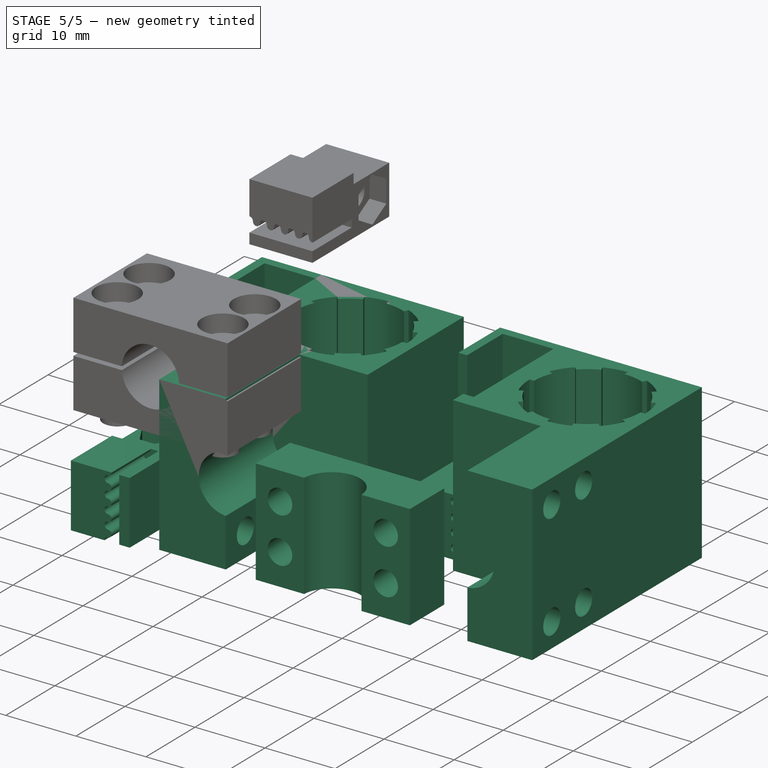
[diagram: stage 5 of 5 — iso view after this stage's code; geometry added in this stage tinted green]
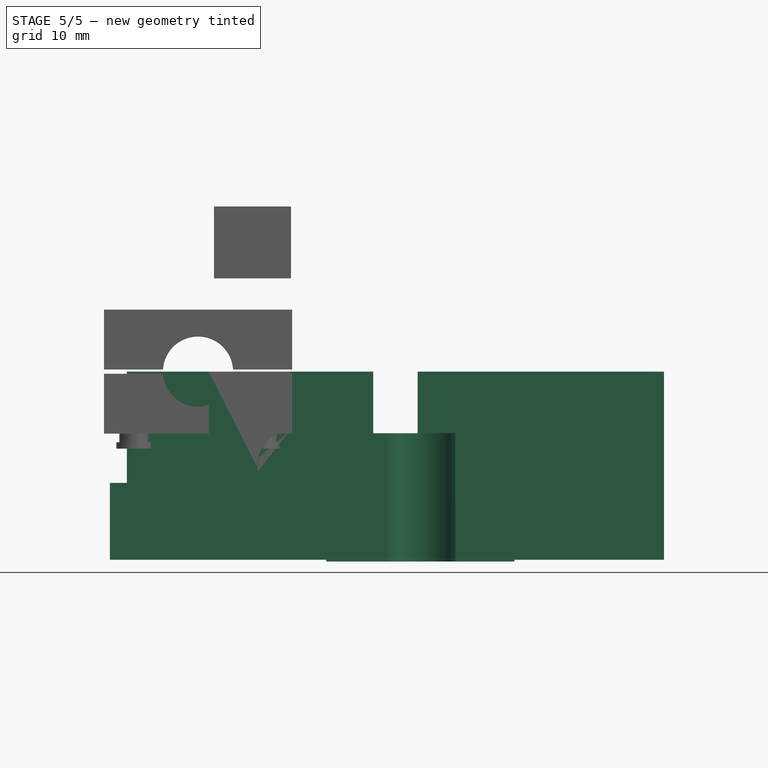
[diagram: stage 5 of 5 — front view after this stage's code; geometry added in this stage tinted green]
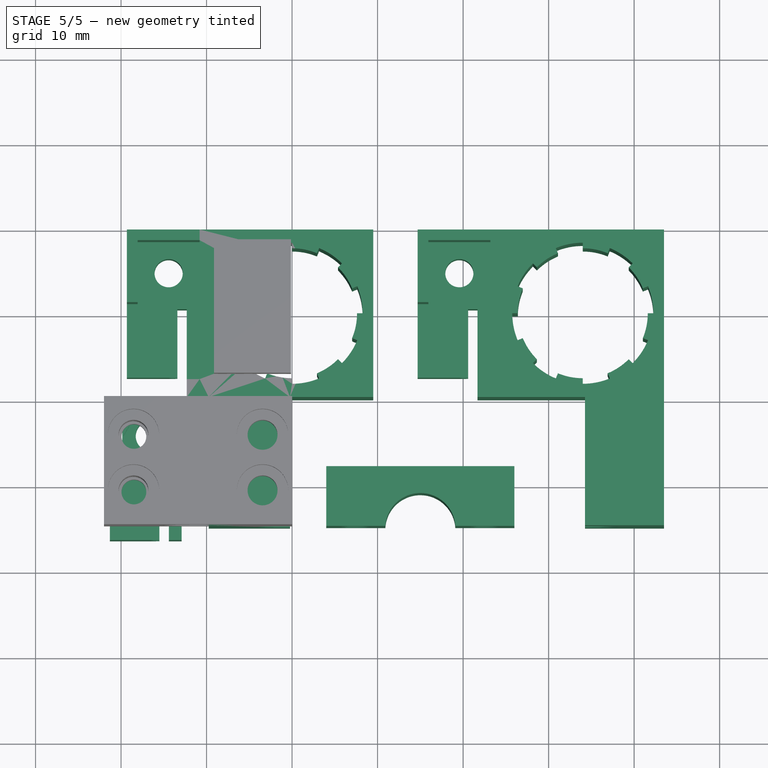
[diagram: stage 5 of 5 — top view after this stage's code; geometry added in this stage tinted green]
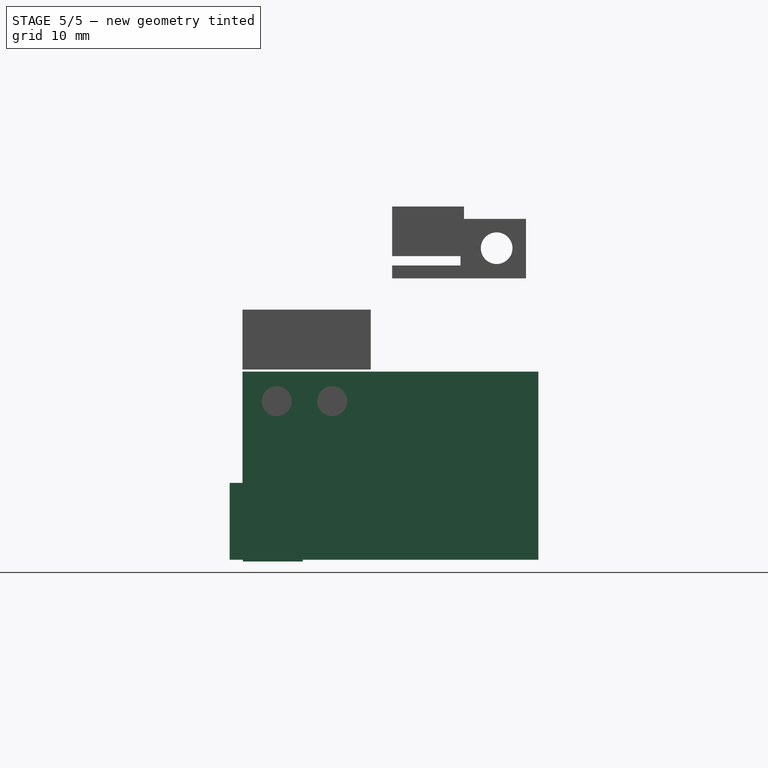
[diagram: stage 5 of 5 — right view after this stage's code; geometry added in this stage tinted green]
FEATURE [PartDesign::Body] Body003  label="Axisholder_X"
  Group = -> [ReferencePocket005001,Sketch015,Pad007,Sketch016,Pocket007]
  Origin = -> Origin002
  Tip = -> Pocket007
FEATURE [PartDesign::FeatureBase] Clone002  label="Axisholder_X001"
  BaseFeature = -> Pocket007
  Placement = pos=(0,0,0) rot=(0.57735,0.57735,0.57735;2.0944rad)
FEATURE [Part::MultiFuse] Fusion  label="X-Axisholder-Complete"
  Shapes = -> [Clone,Clone002]
FEATURE [PartDesign::Body] Body004  label="Clamp"
  Group = -> [ReferencePocket007,Sketch017,Pad008,Sketch018,Pocket008,Sketch019,Pocket009]
  Origin = -> Origin003
  Tip = -> Pocket009
FEATURE [App::DocumentObjectGroup] Group  label="DesignParts"
  Group = -> [Body,Body003,Body002,Body001,Body004]
FEATURE [PartDesign::FeatureBase] Clone004  label="Clamp_X"
  BaseFeature = -> Pocket009
  Placement = pos=(-22,0,0) rot=(0,1,0;3.14159rad)
FEATURE [PartDesign::FeatureBase] Clone006  label="Belt_Tighterner_X"
  BaseFeature = -> Pocket004
  Placement = pos=(4.5,0,0) rot=(0.57735,0.57735,0.57735;2.0944rad)
FEATURE [PartDesign::FeatureBase] Clone008  label="Clamps_4x"
  BaseFeature = -> Pocket009
  Placement = pos=(26,-25,-32) rot=(1,0,0;4.71239rad)
FEATURE [PartDesign::FeatureBase] Clone009  label="BeltTightener_4x"
  BaseFeature = -> Pocket004
  Placement = pos=(-2,-19,-8.37) rot=(0,0,-1;4.71239rad)
FEATURE [PartDesign::FeatureBase] Clone010  label="X-Axis_2x"
  BaseFeature = -> Fusion
  Placement = pos=(0,0,0) rot=(0,1,0;4.71239rad)
FEATURE [PartDesign::FeatureBase] Clone011  label="Y-Axis_2x"
  BaseFeature = -> Fusion001
  Placement = pos=(34,0,0) rot=(0,1,0;4.71239rad)
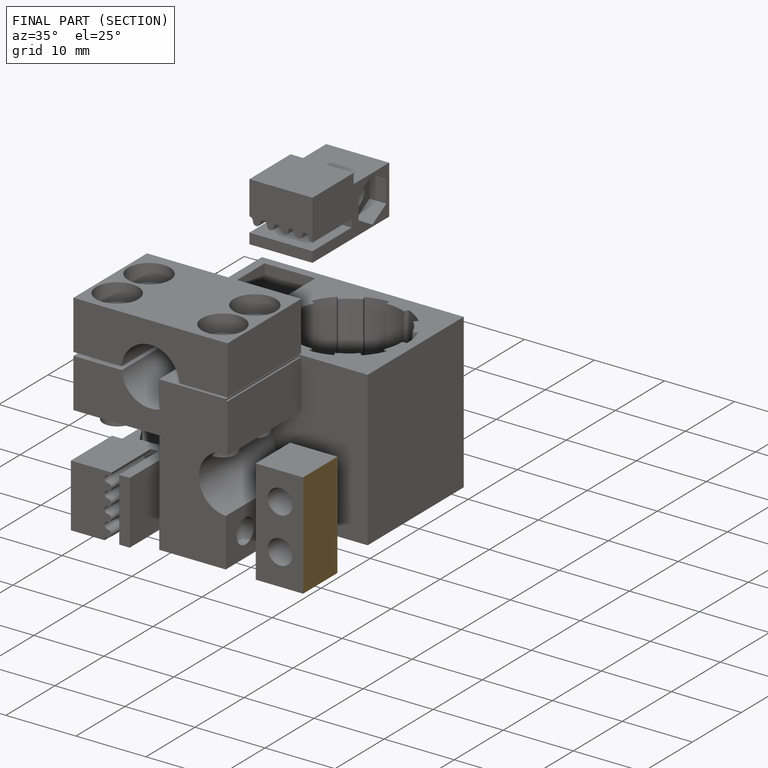
[diagram: finished part — half-section view (interior)]
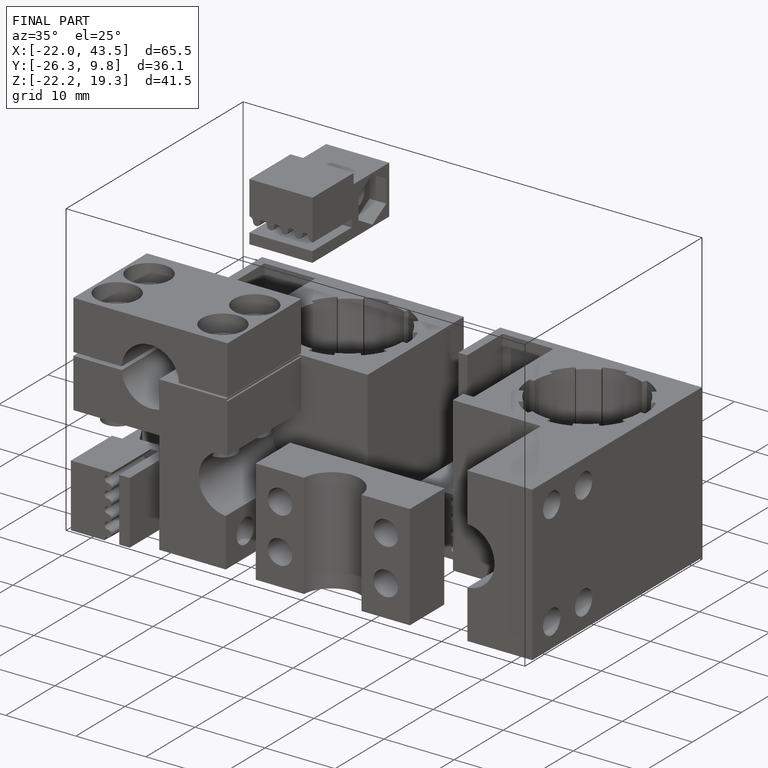
[diagram: finished part — iso view with bounding-box wireframe]
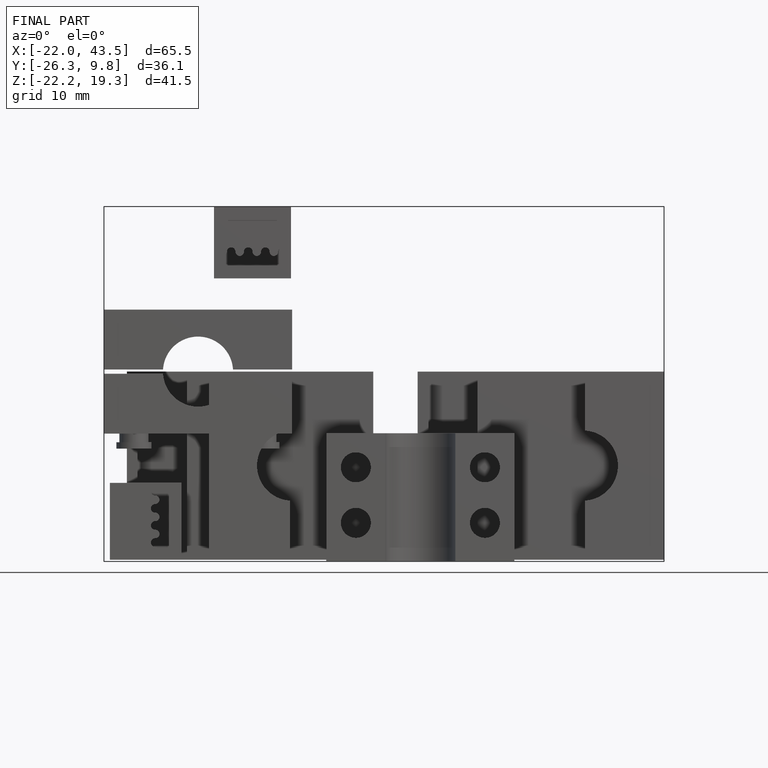
[diagram: finished part — front view with bounding-box wireframe]
